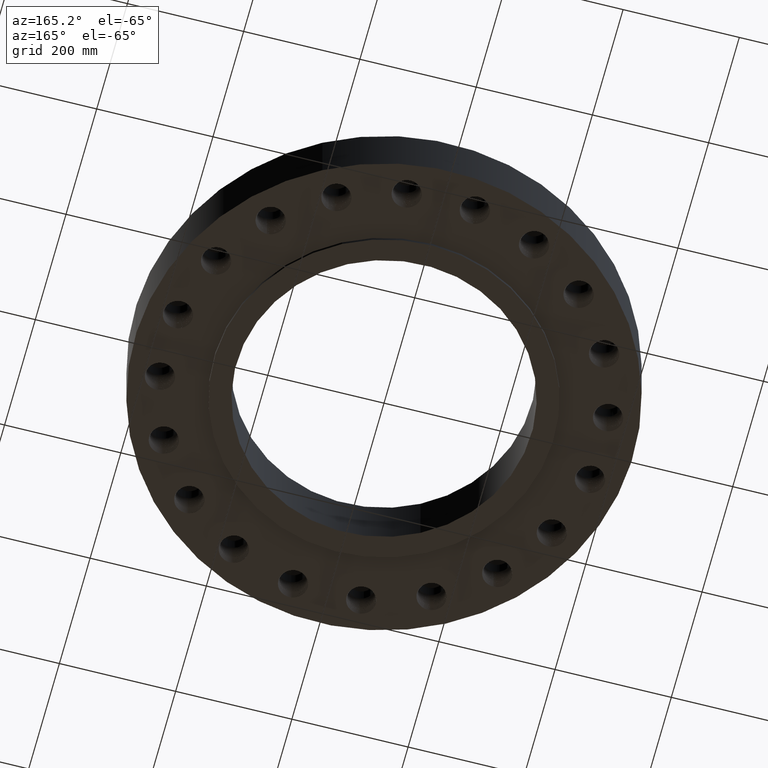
[diagram: clean part render]
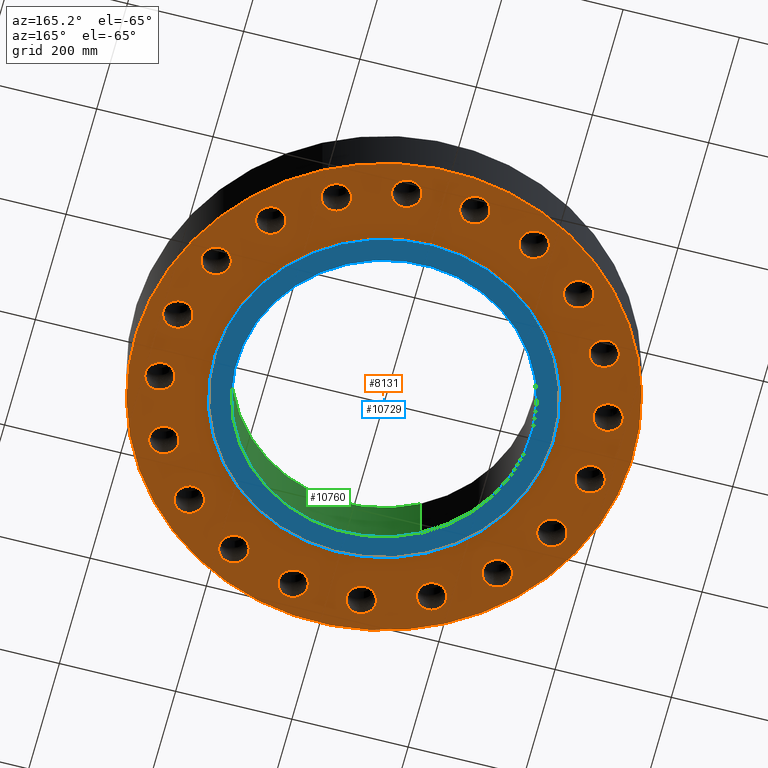
[diagram: same view with three faces highlighted in distinct colors, each labeled with its STEP entity id]
A machine part, auxiliary view with three faces highlighted in distinct colors.
Their STEP definitions:

[orange] entity #8131 — the highlighted planar face has unit normal (0, 0, -1).
#7122=AXIS2_PLACEMENT_3D('Circle Axis2P3D',#7120,#7121,$) ;
#7142=AXIS2_PLACEMENT_3D('Circle Axis2P3D',#7140,#7141,$) ;
#7162=AXIS2_PLACEMENT_3D('Circle Axis2P3D',#7160,#7161,$) ;
#7174=AXIS2_PLACEMENT_3D('Plane Axis2P3D',#7171,#7172,#7173) ;
#7178=AXIS2_PLACEMENT_3D('Circle Axis2P3D',#7176,#7177,$) ;
#7187=AXIS2_PLACEMENT_3D('Circle Axis2P3D',#7185,#7186,$) ;
#7203=AXIS2_PLACEMENT_3D('Circle Axis2P3D',#7201,#7202,$) ;
#7212=AXIS2_PLACEMENT_3D('Circle Axis2P3D',#7210,#7211,$) ;
#7221=AXIS2_PLACEMENT_3D('Circle Axis2P3D',#7219,#7220,$) ;
#7230=AXIS2_PLACEMENT_3D('Circle Axis2P3D',#7228,#7229,$) ;
#7237=AXIS2_PLACEMENT_3D('Circle Axis2P3D',#7235,#7236,$) ;
#7269=AXIS2_PLACEMENT_3D('Circle Axis2P3D',#7267,#7268,$) ;
#7278=AXIS2_PLACEMENT_3D('Circle Axis2P3D',#7276,#7277,$) ;
#7285=AXIS2_PLACEMENT_3D('Circle Axis2P3D',#7283,#7284,$) ;
#7317=AXIS2_PLACEMENT_3D('Circle Axis2P3D',#7315,#7316,$) ;
#7326=AXIS2_PLACEMENT_3D('Circle Axis2P3D',#7324,#7325,$) ;
#7333=AXIS2_PLACEMENT_3D('Circle Axis2P3D',#7331,#7332,$) ;
#7365=AXIS2_PLACEMENT_3D('Circle Axis2P3D',#7363,#7364,$) ;
#7374=AXIS2_PLACEMENT_3D('Circle Axis2P3D',#7372,#7373,$) ;
#7381=AXIS2_PLACEMENT_3D('Circle Axis2P3D',#7379,#7380,$) ;
#7413=AXIS2_PLACEMENT_3D('Circle Axis2P3D',#7411,#7412,$) ;
#7422=AXIS2_PLACEMENT_3D('Circle Axis2P3D',#7420,#7421,$) ;
#7429=AXIS2_PLACEMENT_3D('Circle Axis2P3D',#7427,#7428,$) ;
#7461=AXIS2_PLACEMENT_3D('Circle Axis2P3D',#7459,#7460,$) ;
#7470=AXIS2_PLACEMENT_3D('Circle Axis2P3D',#7468,#7469,$) ;
#7477=AXIS2_PLACEMENT_3D('Circle Axis2P3D',#7475,#7476,$) ;
#7509=AXIS2_PLACEMENT_3D('Circle Axis2P3D',#7507,#7508,$) ;
#7518=AXIS2_PLACEMENT_3D('Circle Axis2P3D',#7516,#7517,$) ;
#7525=AXIS2_PLACEMENT_3D('Circle Axis2P3D',#7523,#7524,$) ;
#7557=AXIS2_PLACEMENT_3D('Circle Axis2P3D',#7555,#7556,$) ;
#7566=AXIS2_PLACEMENT_3D('Circle Axis2P3D',#7564,#7565,$) ;
#7573=AXIS2_PLACEMENT_3D('Circle Axis2P3D',#7571,#7572,$) ;
#7605=AXIS2_PLACEMENT_3D('Circle Axis2P3D',#7603,#7604,$) ;
#7614=AXIS2_PLACEMENT_3D('Circle Axis2P3D',#7612,#7613,$) ;
#7621=AXIS2_PLACEMENT_3D('Circle Axis2P3D',#7619,#7620,$) ;
#7653=AXIS2_PLACEMENT_3D('Circle Axis2P3D',#7651,#7652,$) ;
#7662=AXIS2_PLACEMENT_3D('Circle Axis2P3D',#7660,#7661,$) ;
#7669=AXIS2_PLACEMENT_3D('Circle Axis2P3D',#7667,#7668,$) ;
#7701=AXIS2_PLACEMENT_3D('Circle Axis2P3D',#7699,#7700,$) ;
#7710=AXIS2_PLACEMENT_3D('Circle Axis2P3D',#7708,#7709,$) ;
#7717=AXIS2_PLACEMENT_3D('Circle Axis2P3D',#7715,#7716,$) ;
#7749=AXIS2_PLACEMENT_3D('Circle Axis2P3D',#7747,#7748,$) ;
#7758=AXIS2_PLACEMENT_3D('Circle Axis2P3D',#7756,#7757,$) ;
#7765=AXIS2_PLACEMENT_3D('Circle Axis2P3D',#7763,#7764,$) ;
#7797=AXIS2_PLACEMENT_3D('Circle Axis2P3D',#7795,#7796,$) ;
#7806=AXIS2_PLACEMENT_3D('Circle Axis2P3D',#7804,#7805,$) ;
#7813=AXIS2_PLACEMENT_3D('Circle Axis2P3D',#7811,#7812,$) ;
#7845=AXIS2_PLACEMENT_3D('Circle Axis2P3D',#7843,#7844,$) ;
#7854=AXIS2_PLACEMENT_3D('Circle Axis2P3D',#7852,#7853,$) ;
#7861=AXIS2_PLACEMENT_3D('Circle Axis2P3D',#7859,#7860,$) ;
#7893=AXIS2_PLACEMENT_3D('Circle Axis2P3D',#7891,#7892,$) ;
#7902=AXIS2_PLACEMENT_3D('Circle Axis2P3D',#7900,#7901,$) ;
#7909=AXIS2_PLACEMENT_3D('Circle Axis2P3D',#7907,#7908,$) ;
#7941=AXIS2_PLACEMENT_3D('Circle Axis2P3D',#7939,#7940,$) ;
#7950=AXIS2_PLACEMENT_3D('Circle Axis2P3D',#7948,#7949,$) ;
#7957=AXIS2_PLACEMENT_3D('Circle Axis2P3D',#7955,#7956,$) ;
#7989=AXIS2_PLACEMENT_3D('Circle Axis2P3D',#7987,#7988,$) ;
#7998=AXIS2_PLACEMENT_3D('Circle Axis2P3D',#7996,#7997,$) ;
#8005=AXIS2_PLACEMENT_3D('Circle Axis2P3D',#8003,#8004,$) ;
#8037=AXIS2_PLACEMENT_3D('Circle Axis2P3D',#8035,#8036,$) ;
#8046=AXIS2_PLACEMENT_3D('Circle Axis2P3D',#8044,#8045,$) ;
#8053=AXIS2_PLACEMENT_3D('Circle Axis2P3D',#8051,#8052,$) ;
#8085=AXIS2_PLACEMENT_3D('Circle Axis2P3D',#8083,#8084,$) ;
#8094=AXIS2_PLACEMENT_3D('Circle Axis2P3D',#8092,#8093,$) ;
#8101=AXIS2_PLACEMENT_3D('Circle Axis2P3D',#8099,#8100,$) ;
#6860=CARTESIAN_POINT('Vertex',(10.4298250225,9.42982502254,-3.58724423744E-014)) ;
#7058=CARTESIAN_POINT('Vertex',(10.552781248,9.43993209064,0.)) ;
#7062=CARTESIAN_POINT('Control Point',(10.4298250225,9.42982502254,-3.5809063501E-014)) ;
#7063=CARTESIAN_POINT('Control Point',(10.4709937157,9.43065832093,-3.5808765136E-014)) ;
#7064=CARTESIAN_POINT('Control Point',(10.5120854332,9.43403766771,-4.09043965677E-012)) ;
#7065=CARTESIAN_POINT('Control Point',(10.5527812089,9.4399319843,-4.01466480357E-012)) ;
#7095=CARTESIAN_POINT('Control Point',(10.4298250225,9.42982502254,2.18547839493E-018)) ;
#7096=CARTESIAN_POINT('Control Point',(10.3886793634,9.43065785469,2.38427707412E-018)) ;
#7097=CARTESIAN_POINT('Control Point',(10.3476103474,9.4340339357,-1.74705122703E-011)) ;
#7098=CARTESIAN_POINT('Control Point',(10.3069330116,9.43992392813,-5.01002585874E-011)) ;
#7099=CARTESIAN_POINT('Vertex',(10.306932999,9.43992411813,0.)) ;
#7120=CARTESIAN_POINT('Axis2P3D Location',(10.4298250225,10.4298250225,0.)) ;
#7124=CARTESIAN_POINT('Vertex',(9.55443641705,9.95159804778,8.74191357973E-018)) ;
#7140=CARTESIAN_POINT('Axis2P3D Location',(10.4298250225,10.4298250225,0.)) ;
#7144=CARTESIAN_POINT('Vertex',(11.305213628,10.9080519973,8.74191357973E-018)) ;
#7160=CARTESIAN_POINT('Axis2P3D Location',(10.4298250225,10.4298250225,0.)) ;
#7171=CARTESIAN_POINT('Axis2P3D Location',(0.,16.8750000001,0.)) ;
#7176=CARTESIAN_POINT('Axis2P3D Location',(0.,0.,0.)) ;
#7180=CARTESIAN_POINT('Vertex',(-8.09030596398,-14.809205732,-4.97939397501E-014)) ;
#7182=CARTESIAN_POINT('Vertex',(8.09030596398,14.809205732,-4.97939397501E-014)) ;
#7185=CARTESIAN_POINT('Axis2P3D Location',(0.,0.,0.)) ;
#7201=CARTESIAN_POINT('Axis2P3D Location',(0.,0.,0.)) ;
#7205=CARTESIAN_POINT('Vertex',(5.51339369397,10.0921994618,-3.44081718498E-014)) ;
#7207=CARTESIAN_POINT('Vertex',(-5.51339369397,-10.0921994618,-3.44081718498E-014)) ;
#7210=CARTESIAN_POINT('Axis2P3D Location',(0.,0.,0.)) ;
#7219=CARTESIAN_POINT('Axis2P3D Location',(13.1423462318,6.69635987119,0.)) ;
#7223=CARTESIAN_POINT('Vertex',(14.1226705317,6.88067079602,0.)) ;
#7225=CARTESIAN_POINT('Vertex',(12.9533908126,5.71692018465,0.)) ;
#7228=CARTESIAN_POINT('Axis2P3D Location',(13.1423462318,6.69635987119,0.)) ;
#7232=CARTESIAN_POINT('Vertex',(12.1620219319,6.51204894635,8.91675185132E-016)) ;
#7235=CARTESIAN_POINT('Axis2P3D Location',(13.1423462318,6.69635987119,0.)) ;
#7239=CARTESIAN_POINT('Vertex',(12.7195727698,5.7928838893,0.)) ;
#7243=CARTESIAN_POINT('Control Point',(12.8333292375,5.74530335489,0.)) ;
#7244=CARTESIAN_POINT('Control Point',(12.8100045447,5.7534074219,0.)) ;
#7245=CARTESIAN_POINT('Control Point',(12.7869370857,5.76222911801,0.)) ;
#7246=CARTESIAN_POINT('Control Point',(12.764156717,5.77175776833,0.)) ;
#7247=CARTESIAN_POINT('Control Point',(12.7416925533,5.7819807982,0.)) ;
#7248=CARTESIAN_POINT('Control Point',(12.7195727698,5.7928838893,0.)) ;
#7249=CARTESIAN_POINT('Vertex',(12.8333292375,5.74530335489,-3.58724423744E-014)) ;
#7253=CARTESIAN_POINT('Control Point',(12.8333292375,5.74530335489,0.)) ;
#7254=CARTESIAN_POINT('Control Point',(12.8569759918,5.73814576771,0.)) ;
#7255=CARTESIAN_POINT('Control Point',(12.8808366903,5.73172077089,0.)) ;
#7256=CARTESIAN_POINT('Control Point',(12.9048803249,5.72603723864,0.)) ;
#7257=CARTESIAN_POINT('Control Point',(12.9290755349,5.72110207042,0.)) ;
#7258=CARTESIAN_POINT('Control Point',(12.9533908126,5.71692018465,0.)) ;
#7267=CARTESIAN_POINT('Axis2P3D Location',(14.5684030238,2.30740835935,0.)) ;
#7271=CARTESIAN_POINT('Vertex',(15.5577020454,2.17976159677,0.)) ;
#7273=CARTESIAN_POINT('Vertex',(14.086032233,1.43429629885,0.)) ;
#7276=CARTESIAN_POINT('Axis2P3D Location',(14.5684030238,2.30740835935,0.)) ;
#7280=CARTESIAN_POINT('Vertex',(13.5791040023,2.43505512193,1.74838271595E-016)) ;
#7283=CARTESIAN_POINT('Axis2P3D Location',(14.5684030238,2.30740835935,0.)) ;
#7287=CARTESIAN_POINT('Vertex',(13.8871321355,1.57879582401,0.)) ;
#7291=CARTESIAN_POINT('Control Point',(13.9806177715,1.49839136497,0.)) ;
#7292=CARTESIAN_POINT('Control Point',(13.9609389649,1.51330651717,0.)) ;
#7293=CARTESIAN_POINT('Control Point',(13.9417265618,1.52882468559,0.)) ;
#7294=CARTESIAN_POINT('Control Point',(13.9230056585,1.54492649164,0.)) ;
#7295=CARTESIAN_POINT('Control Point',(13.9048000592,1.56159097918,0.)) ;
#7296=CARTESIAN_POINT('Control Point',(13.8871321355,1.57879582401,0.)) ;
#7297=CARTESIAN_POINT('Vertex',(13.9806177715,1.49839136497,-3.58724423744E-014)) ;
#7301=CARTESIAN_POINT('Control Point',(13.9806177715,1.49839136497,0.)) ;
#7302=CARTESIAN_POINT('Control Point',(14.0008953553,1.48427684608,0.)) ;
#7303=CARTESIAN_POINT('Control Point',(14.0216027949,1.47079294966,0.)) ;
#7304=CARTESIAN_POINT('Control Point',(14.0427133422,1.45795769759,0.)) ;
#7305=CARTESIAN_POINT('Control Point',(14.0641993035,1.44578734261,0.)) ;
#7306=CARTESIAN_POINT('Control Point',(14.086032233,1.43429629885,0.)) ;
#7315=CARTESIAN_POINT('Axis2P3D Location',(14.5684030238,-2.30740835935,0.)) ;
#7319=CARTESIAN_POINT('Vertex',(15.4698372859,-2.73451785486,0.)) ;
#7321=CARTESIAN_POINT('Vertex',(13.8398346753,-2.988726502,0.)) ;
#7324=CARTESIAN_POINT('Axis2P3D Location',(14.5684030238,-2.30740835935,0.)) ;
#7328=CARTESIAN_POINT('Vertex',(13.6669687618,-1.88029886384,8.74191357973E-018)) ;
#7331=CARTESIAN_POINT('Axis2P3D Location',(14.5684030238,-2.30740835935,0.)) ;
#7335=CARTESIAN_POINT('Vertex',(13.6953222503,-2.78983577666,0.)) ;
#7339=CARTESIAN_POINT('Control Point',(13.7593860295,-2.89519361165,0.)) ;
#7340=CARTESIAN_POINT('Control Point',(13.7452794077,-2.87492737329,0.)) ;
#7341=CARTESIAN_POINT('Control Point',(13.7318027042,-2.854231759,0.)) ;
#7342=CARTESIAN_POINT('Control Point',(13.7189737989,-2.83313295418,0.)) ;
#7343=CARTESIAN_POINT('Control Point',(13.7068088549,-2.81165824514,0.)) ;
#7344=CARTESIAN_POINT('Control Point',(13.6953222503,-2.78983577666,0.)) ;
#7345=CARTESIAN_POINT('Vertex',(13.7593860295,-2.89519361165,-3.58724423744E-014)) ;
#7349=CARTESIAN_POINT('Control Point',(13.7593860295,-2.89519361165,0.)) ;
#7350=CARTESIAN_POINT('Control Point',(13.7743095314,-2.9148834348,0.)) ;
#7351=CARTESIAN_POINT('Control Point',(13.7898367236,-2.9341063331,0.)) ;
#7352=CARTESIAN_POINT('Control Point',(13.8059477362,-2.95283690109,0.)) ;
#7353=CARTESIAN_POINT('Control Point',(13.8226212532,-2.97105112368,0.)) ;
#7354=CARTESIAN_POINT('Control Point',(13.8398346753,-2.988726502,0.)) ;
#7363=CARTESIAN_POINT('Axis2P3D Location',(13.1423462318,-6.69635987119,0.)) ;
#7367=CARTESIAN_POINT('Vertex',(13.8676770682,-7.38112364636,0.)) ;
#7369=CARTESIAN_POINT('Vertex',(12.2388976717,-7.11919192915,0.)) ;
#7372=CARTESIAN_POINT('Axis2P3D Location',(13.1423462318,-6.69635987119,0.)) ;
#7376=CARTESIAN_POINT('Vertex',(12.4170153954,-6.01159609601,-8.74191357973E-018)) ;
#7379=CARTESIAN_POINT('Axis2P3D Location',(13.1423462318,-6.69635987119,0.)) ;
#7383=CARTESIAN_POINT('Vertex',(12.1629188025,-6.88537881364,0.)) ;
#7387=CARTESIAN_POINT('Control Point',(12.1912897155,-7.00537686556,0.)) ;
#7388=CARTESIAN_POINT('Control Point',(12.1841361331,-6.98174334167,0.)) ;
#7389=CARTESIAN_POINT('Control Point',(12.1777143229,-6.95789611245,0.)) ;
#7390=CARTESIAN_POINT('Control Point',(12.1720331982,-6.9338656069,0.)) ;
#7391=CARTESIAN_POINT('Control Point',(12.167099699,-6.90968277049,0.)) ;
#7392=CARTESIAN_POINT('Control Point',(12.1629188025,-6.88537881364,0.)) ;
#7393=CARTESIAN_POINT('Vertex',(12.1912897155,-7.00537686556,-3.58724423744E-014)) ;
#7397=CARTESIAN_POINT('Control Point',(12.1912897155,-7.00537686556,0.)) ;
#7398=CARTESIAN_POINT('Control Point',(12.1993983193,-7.02871461589,0.)) ;
#7399=CARTESIAN_POINT('Control Point',(12.2082253544,-7.05179484485,0.)) ;
#7400=CARTESIAN_POINT('Control Point',(12.2177597741,-7.07458725026,0.)) ;
#7401=CARTESIAN_POINT('Control Point',(12.2279887267,-7.09706240545,0.)) ;
#7402=CARTESIAN_POINT('Control Point',(12.2388976717,-7.11919192915,0.)) ;
#7411=CARTESIAN_POINT('Axis2P3D Location',(10.4298250225,-10.4298250225,0.)) ;
#7415=CARTESIAN_POINT('Vertex',(10.9080519973,-11.305213628,0.)) ;
#7417=CARTESIAN_POINT('Vertex',(9.43993209064,-10.552781248,0.)) ;
#7420=CARTESIAN_POINT('Axis2P3D Location',(10.4298250225,-10.4298250225,0.)) ;
#7424=CARTESIAN_POINT('Vertex',(9.95159804778,-9.55443641705,8.74191357973E-018)) ;
#7427=CARTESIAN_POINT('Axis2P3D Location',(10.4298250225,-10.4298250225,0.)) ;
#7431=CARTESIAN_POINT('Vertex',(9.43992411813,-10.306932999,0.)) ;
#7435=CARTESIAN_POINT('Control Point',(9.42982502254,-10.4298250225,0.)) ;
#7436=CARTESIAN_POINT('Control Point',(9.43032472183,-10.4051376271,0.)) ;
#7437=CARTESIAN_POINT('Control Point',(9.43158641656,-10.3804731158,0.)) ;
#7438=CARTESIAN_POINT('Control Point',(9.43360918047,-10.3558631829,0.)) ;
#7439=CARTESIAN_POINT('Control Point',(9.43639005129,-10.3313394036,0.)) ;
#7440=CARTESIAN_POINT('Control Point',(9.43992411813,-10.306932999,0.)) ;
#7441=CARTESIAN_POINT('Vertex',(9.42982502254,-10.4298250225,-3.58724423744E-014)) ;
#7445=CARTESIAN_POINT('Control Point',(9.42982502254,-10.4298250225,0.)) ;
#7446=CARTESIAN_POINT('Control Point',(9.43032500157,-10.4545262385,0.)) ;
#7447=CARTESIAN_POINT('Control Point',(9.43158782782,-10.4792045445,0.)) ;
#7448=CARTESIAN_POINT('Control Point',(9.43361235912,-10.5038277078,0.)) ;
#7449=CARTESIAN_POINT('Control Point',(9.43639546631,-10.5283637709,0.)) ;
#7450=CARTESIAN_POINT('Control Point',(9.43993209064,-10.552781248,0.)) ;
#7459=CARTESIAN_POINT('Axis2P3D Location',(6.69635987119,-13.1423462318,0.)) ;
#7463=CARTESIAN_POINT('Vertex',(6.88067079602,-14.1226705317,0.)) ;
#7465=CARTESIAN_POINT('Vertex',(5.71692018464,-12.9533908127,0.)) ;
#7468=CARTESIAN_POINT('Axis2P3D Location',(6.69635987119,-13.1423462318,0.)) ;
#7472=CARTESIAN_POINT('Vertex',(6.51204894635,-12.1620219319,-1.04902962957E-016)) ;
#7475=CARTESIAN_POINT('Axis2P3D Location',(6.69635987119,-13.1423462318,0.)) ;
#7479=CARTESIAN_POINT('Vertex',(5.79288388933,-12.7195727698,0.)) ;
#7483=CARTESIAN_POINT('Control Point',(5.74530335489,-12.8333292375,0.)) ;
#7484=CARTESIAN_POINT('Control Point',(5.7534074219,-12.8100045447,0.)) ;
#7485=CARTESIAN_POINT('Control Point',(5.76222911802,-12.7869370857,0.)) ;
#7486=CARTESIAN_POINT('Control Point',(5.77175776835,-12.764156717,0.)) ;
#7487=CARTESIAN_POINT('Control Point',(5.78198079822,-12.7416925532,0.)) ;
#7488=CARTESIAN_POINT('Control Point',(5.79288388933,-12.7195727698,0.)) ;
#7489=CARTESIAN_POINT('Vertex',(5.74530335489,-12.8333292375,-3.58724423744E-014)) ;
#7493=CARTESIAN_POINT('Control Point',(5.74530335489,-12.8333292375,0.)) ;
#7494=CARTESIAN_POINT('Control Point',(5.73814576771,-12.8569759918,0.)) ;
#7495=CARTESIAN_POINT('Control Point',(5.73172077089,-12.8808366903,0.)) ;
#7496=CARTESIAN_POINT('Control Point',(5.72603723864,-12.9048803249,0.)) ;
#7497=CARTESIAN_POINT('Control Point',(5.72110207042,-12.9290755349,0.)) ;
#7498=CARTESIAN_POINT('Control Point',(5.71692018464,-12.9533908127,0.)) ;
#7507=CARTESIAN_POINT('Axis2P3D Location',(2.30740835935,-14.5684030238,0.)) ;
#7511=CARTESIAN_POINT('Vertex',(2.17976159677,-15.5577020454,0.)) ;
#7513=CARTESIAN_POINT('Vertex',(1.43429629885,-14.086032233,0.)) ;
#7516=CARTESIAN_POINT('Axis2P3D Location',(2.30740835935,-14.5684030238,0.)) ;
#7520=CARTESIAN_POINT('Vertex',(2.43505512193,-13.5791040023,0.)) ;
#7523=CARTESIAN_POINT('Axis2P3D Location',(2.30740835935,-14.5684030238,0.)) ;
#7527=CARTESIAN_POINT('Vertex',(1.57879582401,-13.8871321355,0.)) ;
#7531=CARTESIAN_POINT('Control Point',(1.49839136497,-13.9806177715,0.)) ;
#7532=CARTESIAN_POINT('Control Point',(1.51330651717,-13.9609389649,0.)) ;
#7533=CARTESIAN_POINT('Control Point',(1.52882468559,-13.9417265618,0.)) ;
#7534=CARTESIAN_POINT('Control Point',(1.54492649165,-13.9230056585,0.)) ;
#7535=CARTESIAN_POINT('Control Point',(1.56159097918,-13.9048000592,0.)) ;
#7536=CARTESIAN_POINT('Control Point',(1.57879582401,-13.8871321355,0.)) ;
#7537=CARTESIAN_POINT('Vertex',(1.49839136497,-13.9806177715,-3.58724423744E-014)) ;
#7541=CARTESIAN_POINT('Control Point',(1.49839136497,-13.9806177715,0.)) ;
#7542=CARTESIAN_POINT('Control Point',(1.48427684608,-14.0008953553,0.)) ;
#7543=CARTESIAN_POINT('Control Point',(1.47079294966,-14.0216027949,0.)) ;
#7544=CARTESIAN_POINT('Control Point',(1.45795769759,-14.0427133422,0.)) ;
#7545=CARTESIAN_POINT('Control Point',(1.44578734261,-14.0641993035,0.)) ;
#7546=CARTESIAN_POINT('Control Point',(1.43429629885,-14.086032233,0.)) ;
#7555=CARTESIAN_POINT('Axis2P3D Location',(-2.30740835935,-14.5684030238,0.)) ;
#7559=CARTESIAN_POINT('Vertex',(-2.73451785486,-15.4698372859,0.)) ;
#7561=CARTESIAN_POINT('Vertex',(-2.988726502,-13.8398346753,0.)) ;
#7564=CARTESIAN_POINT('Axis2P3D Location',(-2.30740835935,-14.5684030238,0.)) ;
#7568=CARTESIAN_POINT('Vertex',(-1.88029886384,-13.6669687618,0.)) ;
#7571=CARTESIAN_POINT('Axis2P3D Location',(-2.30740835935,-14.5684030238,0.)) ;
#7575=CARTESIAN_POINT('Vertex',(-2.78983577662,-13.6953222503,0.)) ;
#7579=CARTESIAN_POINT('Control Point',(-2.89519361165,-13.7593860295,0.)) ;
#7580=CARTESIAN_POINT('Control Point',(-2.87492737328,-13.7452794077,0.)) ;
#7581=CARTESIAN_POINT('Control Point',(-2.85423175899,-13.7318027042,0.)) ;
#7582=CARTESIAN_POINT('Control Point',(-2.83313295416,-13.7189737989,0.)) ;
#7583=CARTESIAN_POINT('Control Point',(-2.81165824511,-13.7068088549,0.)) ;
#7584=CARTESIAN_POINT('Control Point',(-2.78983577662,-13.6953222503,0.)) ;
#7585=CARTESIAN_POINT('Vertex',(-2.89519361165,-13.7593860295,-3.58724423744E-014)) ;
#7589=CARTESIAN_POINT('Control Point',(-2.89519361165,-13.7593860295,0.)) ;
#7590=CARTESIAN_POINT('Control Point',(-2.9148834348,-13.7743095314,0.)) ;
#7591=CARTESIAN_POINT('Control Point',(-2.9341063331,-13.7898367236,0.)) ;
#7592=CARTESIAN_POINT('Control Point',(-2.95283690108,-13.8059477362,0.)) ;
#7593=CARTESIAN_POINT('Control Point',(-2.97105112368,-13.8226212532,0.)) ;
#7594=CARTESIAN_POINT('Control Point',(-2.988726502,-13.8398346753,0.)) ;
#7603=CARTESIAN_POINT('Axis2P3D Location',(-6.69635987119,-13.1423462318,0.)) ;
#7607=CARTESIAN_POINT('Vertex',(-7.38112364636,-13.8676770682,0.)) ;
#7609=CARTESIAN_POINT('Vertex',(-7.11919192915,-12.2388976717,0.)) ;
#7612=CARTESIAN_POINT('Axis2P3D Location',(-6.69635987119,-13.1423462318,0.)) ;
#7616=CARTESIAN_POINT('Vertex',(-6.01159609601,-12.4170153954,0.)) ;
#7619=CARTESIAN_POINT('Axis2P3D Location',(-6.69635987119,-13.1423462318,0.)) ;
#7623=CARTESIAN_POINT('Vertex',(-6.88537881359,-12.1629188025,0.)) ;
#7627=CARTESIAN_POINT('Control Point',(-7.00537686556,-12.1912897155,0.)) ;
#7628=CARTESIAN_POINT('Control Point',(-6.98174334166,-12.1841361331,0.)) ;
#7629=CARTESIAN_POINT('Control Point',(-6.95789611243,-12.1777143229,0.)) ;
#7630=CARTESIAN_POINT('Control Point',(-6.93386560687,-12.1720331982,0.)) ;
#7631=CARTESIAN_POINT('Control Point',(-6.90968277045,-12.1670996989,0.)) ;
#7632=CARTESIAN_POINT('Control Point',(-6.88537881359,-12.1629188025,0.)) ;
#7633=CARTESIAN_POINT('Vertex',(-7.00537686556,-12.1912897155,-3.58724423744E-014)) ;
#7637=CARTESIAN_POINT('Control Point',(-7.00537686556,-12.1912897155,0.)) ;
#7638=CARTESIAN_POINT('Control Point',(-7.02871461589,-12.1993983193,0.)) ;
#7639=CARTESIAN_POINT('Control Point',(-7.05179484485,-12.2082253544,0.)) ;
#7640=CARTESIAN_POINT('Control Point',(-7.07458725026,-12.2177597741,0.)) ;
#7641=CARTESIAN_POINT('Control Point',(-7.09706240545,-12.2279887267,0.)) ;
#7642=CARTESIAN_POINT('Control Point',(-7.11919192915,-12.2388976717,0.)) ;
#7651=CARTESIAN_POINT('Axis2P3D Location',(-10.4298250225,-10.4298250225,0.)) ;
#7655=CARTESIAN_POINT('Vertex',(-11.305213628,-10.9080519973,0.)) ;
#7657=CARTESIAN_POINT('Vertex',(-10.552781248,-9.43993209064,0.)) ;
#7660=CARTESIAN_POINT('Axis2P3D Location',(-10.4298250225,-10.4298250225,0.)) ;
#7664=CARTESIAN_POINT('Vertex',(-9.55443641705,-9.95159804778,8.74191357973E-018)) ;
#7667=CARTESIAN_POINT('Axis2P3D Location',(-10.4298250225,-10.4298250225,0.)) ;
#7671=CARTESIAN_POINT('Vertex',(-10.306932999,-9.43992411814,0.)) ;
#7675=CARTESIAN_POINT('Control Point',(-10.4298250225,-9.42982502254,0.)) ;
#7676=CARTESIAN_POINT('Control Point',(-10.4051376271,-9.43032472183,0.)) ;
#7677=CARTESIAN_POINT('Control Point',(-10.3804731158,-9.43158641656,0.)) ;
#7678=CARTESIAN_POINT('Control Point',(-10.3558631828,-9.43360918047,0.)) ;
#7679=CARTESIAN_POINT('Control Point',(-10.3313394036,-9.43639005129,0.)) ;
#7680=CARTESIAN_POINT('Control Point',(-10.306932999,-9.43992411814,0.)) ;
#7681=CARTESIAN_POINT('Vertex',(-10.4298250225,-9.42982502254,-3.58724423744E-014)) ;
#7685=CARTESIAN_POINT('Control Point',(-10.4298250225,-9.42982502254,0.)) ;
#7686=CARTESIAN_POINT('Control Point',(-10.4545262385,-9.43032500157,0.)) ;
#7687=CARTESIAN_POINT('Control Point',(-10.4792045445,-9.43158782782,0.)) ;
#7688=CARTESIAN_POINT('Control Point',(-10.5038277079,-9.43361235912,0.)) ;
#7689=CARTESIAN_POINT('Control Point',(-10.5283637709,-9.43639546631,0.)) ;
#7690=CARTESIAN_POINT('Control Point',(-10.552781248,-9.43993209064,0.)) ;
#7699=CARTESIAN_POINT('Axis2P3D Location',(-13.1423462318,-6.69635987119,0.)) ;
#7703=CARTESIAN_POINT('Vertex',(-14.1226705317,-6.88067079602,0.)) ;
#7705=CARTESIAN_POINT('Vertex',(-12.9533908126,-5.71692018465,0.)) ;
#7708=CARTESIAN_POINT('Axis2P3D Location',(-13.1423462318,-6.69635987119,0.)) ;
#7712=CARTESIAN_POINT('Vertex',(-12.1620219319,-6.51204894635,0.)) ;
#7715=CARTESIAN_POINT('Axis2P3D Location',(-13.1423462318,-6.69635987119,0.)) ;
#7719=CARTESIAN_POINT('Vertex',(-12.7195727699,-5.79288388929,0.)) ;
#7723=CARTESIAN_POINT('Control Point',(-12.8333292375,-5.74530335489,0.)) ;
#7724=CARTESIAN_POINT('Control Point',(-12.8100045447,-5.7534074219,0.)) ;
#7725=CARTESIAN_POINT('Control Point',(-12.7869370857,-5.76222911801,0.)) ;
#7726=CARTESIAN_POINT('Control Point',(-12.764156717,-5.77175776833,0.)) ;
#7727=CARTESIAN_POINT('Control Point',(-12.7416925533,-5.7819807982,0.)) ;
#7728=CARTESIAN_POINT('Control Point',(-12.7195727699,-5.79288388929,0.)) ;
#7729=CARTESIAN_POINT('Vertex',(-12.8333292375,-5.74530335489,-3.58724423744E-014)) ;
#7733=CARTESIAN_POINT('Control Point',(-12.8333292375,-5.74530335489,0.)) ;
#7734=CARTESIAN_POINT('Control Point',(-12.8569759918,-5.73814576771,0.)) ;
#7735=CARTESIAN_POINT('Control Point',(-12.8808366903,-5.73172077089,0.)) ;
#7736=CARTESIAN_POINT('Control Point',(-12.9048803249,-5.72603723865,0.)) ;
#7737=CARTESIAN_POINT('Control Point',(-12.9290755349,-5.72110207042,0.)) ;
#7738=CARTESIAN_POINT('Control Point',(-12.9533908126,-5.71692018465,0.)) ;
#7747=CARTESIAN_POINT('Axis2P3D Location',(-14.5684030238,-2.30740835935,0.)) ;
#7751=CARTESIAN_POINT('Vertex',(-15.5577020454,-2.17976159677,0.)) ;
#7753=CARTESIAN_POINT('Vertex',(-14.086032233,-1.43429629886,0.)) ;
#7756=CARTESIAN_POINT('Axis2P3D Location',(-14.5684030238,-2.30740835935,0.)) ;
#7760=CARTESIAN_POINT('Vertex',(-13.5791040023,-2.43505512194,6.3815969132E-016)) ;
#7763=CARTESIAN_POINT('Axis2P3D Location',(-14.5684030238,-2.30740835935,0.)) ;
#7767=CARTESIAN_POINT('Vertex',(-13.8871321355,-1.57879582399,0.)) ;
#7771=CARTESIAN_POINT('Control Point',(-13.9806177715,-1.49839136497,0.)) ;
#7772=CARTESIAN_POINT('Control Point',(-13.9609389649,-1.51330651716,0.)) ;
#7773=CARTESIAN_POINT('Control Point',(-13.9417265618,-1.52882468558,0.)) ;
#7774=CARTESIAN_POINT('Control Point',(-13.9230056585,-1.54492649164,0.)) ;
#7775=CARTESIAN_POINT('Control Point',(-13.9048000592,-1.56159097917,0.)) ;
#7776=CARTESIAN_POINT('Control Point',(-13.8871321355,-1.57879582399,0.)) ;
#7777=CARTESIAN_POINT('Vertex',(-13.9806177715,-1.49839136497,-3.58724423744E-014)) ;
#7781=CARTESIAN_POINT('Control Point',(-13.9806177715,-1.49839136497,0.)) ;
#7782=CARTESIAN_POINT('Control Point',(-14.0008953553,-1.48427684609,0.)) ;
#7783=CARTESIAN_POINT('Control Point',(-14.0216027949,-1.47079294967,0.)) ;
#7784=CARTESIAN_POINT('Control Point',(-14.0427133421,-1.4579576976,0.)) ;
#7785=CARTESIAN_POINT('Control Point',(-14.0641993035,-1.44578734262,0.)) ;
#7786=CARTESIAN_POINT('Control Point',(-14.086032233,-1.43429629886,0.)) ;
#7795=CARTESIAN_POINT('Axis2P3D Location',(-14.5684030238,2.30740835935,0.)) ;
#7799=CARTESIAN_POINT('Vertex',(-15.4698372859,2.73451785486,0.)) ;
#7801=CARTESIAN_POINT('Vertex',(-13.8398346753,2.98872650202,0.)) ;
#7804=CARTESIAN_POINT('Axis2P3D Location',(-14.5684030238,2.30740835935,0.)) ;
#7808=CARTESIAN_POINT('Vertex',(-13.6669687618,1.88029886384,2.44773580232E-016)) ;
#7811=CARTESIAN_POINT('Axis2P3D Location',(-14.5684030238,2.30740835935,0.)) ;
#7815=CARTESIAN_POINT('Vertex',(-13.6953222503,2.78983577665,0.)) ;
#7819=CARTESIAN_POINT('Control Point',(-13.7593860295,2.89519361165,0.)) ;
#7820=CARTESIAN_POINT('Control Point',(-13.7452794077,2.87492737329,0.)) ;
#7821=CARTESIAN_POINT('Control Point',(-13.7318027042,2.854231759,0.)) ;
#7822=CARTESIAN_POINT('Control Point',(-13.7189737989,2.83313295418,0.)) ;
#7823=CARTESIAN_POINT('Control Point',(-13.7068088549,2.81165824513,0.)) ;
#7824=CARTESIAN_POINT('Control Point',(-13.6953222503,2.78983577665,0.)) ;
#7825=CARTESIAN_POINT('Vertex',(-13.7593860295,2.89519361165,-3.58724423744E-014)) ;
#7829=CARTESIAN_POINT('Control Point',(-13.7593860295,2.89519361165,0.)) ;
#7830=CARTESIAN_POINT('Control Point',(-13.7743095314,2.9148834348,0.)) ;
#7831=CARTESIAN_POINT('Control Point',(-13.7898367236,2.93410633311,0.)) ;
#7832=CARTESIAN_POINT('Control Point',(-13.8059477362,2.9528369011,0.)) ;
#7833=CARTESIAN_POINT('Control Point',(-13.8226212532,2.9710511237,0.)) ;
#7834=CARTESIAN_POINT('Control Point',(-13.8398346753,2.98872650202,0.)) ;
#7843=CARTESIAN_POINT('Axis2P3D Location',(-13.1423462318,6.69635987119,0.)) ;
#7847=CARTESIAN_POINT('Vertex',(-13.8676770682,7.38112364636,0.)) ;
#7849=CARTESIAN_POINT('Vertex',(-12.2388976717,7.11919192916,0.)) ;
#7852=CARTESIAN_POINT('Axis2P3D Location',(-13.1423462318,6.69635987119,0.)) ;
#7856=CARTESIAN_POINT('Vertex',(-12.4170153954,6.01159609601,-8.74191357973E-018)) ;
#7859=CARTESIAN_POINT('Axis2P3D Location',(-13.1423462318,6.69635987119,0.)) ;
#7863=CARTESIAN_POINT('Vertex',(-12.1629188025,6.88537881359,0.)) ;
#7867=CARTESIAN_POINT('Control Point',(-12.1912897155,7.00537686556,0.)) ;
#7868=CARTESIAN_POINT('Control Point',(-12.1841361331,6.98174334166,0.)) ;
#7869=CARTESIAN_POINT('Control Point',(-12.1777143229,6.95789611243,0.)) ;
#7870=CARTESIAN_POINT('Control Point',(-12.1720331982,6.93386560687,0.)) ;
#7871=CARTESIAN_POINT('Control Point',(-12.1670996989,6.90968277045,0.)) ;
#7872=CARTESIAN_POINT('Control Point',(-12.1629188025,6.88537881359,0.)) ;
#7873=CARTESIAN_POINT('Vertex',(-12.1912897155,7.00537686556,-3.58724423744E-014)) ;
#7877=CARTESIAN_POINT('Control Point',(-12.1912897155,7.00537686556,0.)) ;
#7878=CARTESIAN_POINT('Control Point',(-12.1993983193,7.02871461589,0.)) ;
#7879=CARTESIAN_POINT('Control Point',(-12.2082253544,7.05179484485,0.)) ;
#7880=CARTESIAN_POINT('Control Point',(-12.2177597741,7.07458725026,0.)) ;
#7881=CARTESIAN_POINT('Control Point',(-12.2279887267,7.09706240546,0.)) ;
#7882=CARTESIAN_POINT('Control Point',(-12.2388976717,7.11919192916,0.)) ;
#7891=CARTESIAN_POINT('Axis2P3D Location',(-10.4298250225,10.4298250225,0.)) ;
#7895=CARTESIAN_POINT('Vertex',(-10.9080519973,11.305213628,0.)) ;
#7897=CARTESIAN_POINT('Vertex',(-9.43993209064,10.552781248,0.)) ;
#7900=CARTESIAN_POINT('Axis2P3D Location',(-10.4298250225,10.4298250225,0.)) ;
#7904=CARTESIAN_POINT('Vertex',(-9.95159804778,9.55443641705,-5.24514814784E-016)) ;
#7907=CARTESIAN_POINT('Axis2P3D Location',(-10.4298250225,10.4298250225,0.)) ;
#7911=CARTESIAN_POINT('Vertex',(-9.43992411814,10.306932999,0.)) ;
#7915=CARTESIAN_POINT('Control Point',(-9.42982502254,10.4298250225,0.)) ;
#7916=CARTESIAN_POINT('Control Point',(-9.43032472183,10.4051376271,0.)) ;
#7917=CARTESIAN_POINT('Control Point',(-9.43158641656,10.3804731158,0.)) ;
#7918=CARTESIAN_POINT('Control Point',(-9.43360918047,10.3558631829,0.)) ;
#7919=CARTESIAN_POINT('Control Point',(-9.43639005129,10.3313394036,0.)) ;
#7920=CARTESIAN_POINT('Control Point',(-9.43992411814,10.306932999,0.)) ;
#7921=CARTESIAN_POINT('Vertex',(-9.42982502254,10.4298250225,-3.58724423744E-014)) ;
#7925=CARTESIAN_POINT('Control Point',(-9.42982502254,10.4298250225,0.)) ;
#7926=CARTESIAN_POINT('Control Point',(-9.43032500157,10.4545262385,0.)) ;
#7927=CARTESIAN_POINT('Control Point',(-9.43158782782,10.4792045445,0.)) ;
#7928=CARTESIAN_POINT('Control Point',(-9.43361235912,10.5038277078,0.)) ;
#7929=CARTESIAN_POINT('Control Point',(-9.43639546631,10.5283637709,0.)) ;
#7930=CARTESIAN_POINT('Control Point',(-9.43993209064,10.552781248,0.)) ;
#7939=CARTESIAN_POINT('Axis2P3D Location',(-6.69635987119,13.1423462318,0.)) ;
#7943=CARTESIAN_POINT('Vertex',(-6.88067079602,14.1226705317,0.)) ;
#7945=CARTESIAN_POINT('Vertex',(-5.71692018464,12.9533908127,0.)) ;
#7948=CARTESIAN_POINT('Axis2P3D Location',(-6.69635987119,13.1423462318,0.)) ;
#7952=CARTESIAN_POINT('Vertex',(-6.51204894635,12.1620219319,-2.09805925913E-016)) ;
#7955=CARTESIAN_POINT('Axis2P3D Location',(-6.69635987119,13.1423462318,0.)) ;
#7959=CARTESIAN_POINT('Vertex',(-5.79288388933,12.7195727698,0.)) ;
#7963=CARTESIAN_POINT('Control Point',(-5.74530335489,12.8333292375,0.)) ;
#7964=CARTESIAN_POINT('Control Point',(-5.7534074219,12.8100045447,0.)) ;
#7965=CARTESIAN_POINT('Control Point',(-5.76222911802,12.7869370857,0.)) ;
#7966=CARTESIAN_POINT('Control Point',(-5.77175776835,12.764156717,0.)) ;
#7967=CARTESIAN_POINT('Control Point',(-5.78198079822,12.7416925532,0.)) ;
#7968=CARTESIAN_POINT('Control Point',(-5.79288388933,12.7195727698,0.)) ;
#7969=CARTESIAN_POINT('Vertex',(-5.74530335489,12.8333292375,-3.58724423744E-014)) ;
#7973=CARTESIAN_POINT('Control Point',(-5.74530335489,12.8333292375,0.)) ;
#7974=CARTESIAN_POINT('Control Point',(-5.73814576771,12.8569759918,0.)) ;
#7975=CARTESIAN_POINT('Control Point',(-5.73172077089,12.8808366903,0.)) ;
#7976=CARTESIAN_POINT('Control Point',(-5.72603723864,12.9048803249,0.)) ;
#7977=CARTESIAN_POINT('Control Point',(-5.72110207042,12.9290755349,0.)) ;
#7978=CARTESIAN_POINT('Control Point',(-5.71692018464,12.9533908127,0.)) ;
#7987=CARTESIAN_POINT('Axis2P3D Location',(-2.30740835935,14.5684030238,0.)) ;
#7991=CARTESIAN_POINT('Vertex',(-2.17976159677,15.5577020454,0.)) ;
#7993=CARTESIAN_POINT('Vertex',(-1.43429629886,14.086032233,0.)) ;
#7996=CARTESIAN_POINT('Axis2P3D Location',(-2.30740835935,14.5684030238,0.)) ;
#8000=CARTESIAN_POINT('Vertex',(-2.43505512194,13.5791040023,0.)) ;
#8003=CARTESIAN_POINT('Axis2P3D Location',(-2.30740835935,14.5684030238,0.)) ;
#8007=CARTESIAN_POINT('Vertex',(-1.57879582403,13.8871321354,0.)) ;
#8011=CARTESIAN_POINT('Control Point',(-1.49839136497,13.9806177715,0.)) ;
#8012=CARTESIAN_POINT('Control Point',(-1.51330651717,13.9609389649,0.)) ;
#8013=CARTESIAN_POINT('Control Point',(-1.5288246856,13.9417265617,0.)) ;
#8014=CARTESIAN_POINT('Control Point',(-1.54492649166,13.9230056585,0.)) ;
#8015=CARTESIAN_POINT('Control Point',(-1.56159097919,13.9048000592,0.)) ;
#8016=CARTESIAN_POINT('Control Point',(-1.57879582403,13.8871321354,0.)) ;
#8017=CARTESIAN_POINT('Vertex',(-1.49839136497,13.9806177715,-3.58724423744E-014)) ;
#8021=CARTESIAN_POINT('Control Point',(-1.49839136497,13.9806177715,0.)) ;
#8022=CARTESIAN_POINT('Control Point',(-1.48427684609,14.0008953553,0.)) ;
#8023=CARTESIAN_POINT('Control Point',(-1.47079294966,14.0216027949,0.)) ;
#8024=CARTESIAN_POINT('Control Point',(-1.45795769759,14.0427133422,0.)) ;
#8025=CARTESIAN_POINT('Control Point',(-1.44578734261,14.0641993035,0.)) ;
#8026=CARTESIAN_POINT('Control Point',(-1.43429629886,14.086032233,0.)) ;
#8035=CARTESIAN_POINT('Axis2P3D Location',(2.30740835935,14.5684030238,0.)) ;
#8039=CARTESIAN_POINT('Vertex',(2.73451785486,15.4698372859,0.)) ;
#8041=CARTESIAN_POINT('Vertex',(2.98872650201,13.8398346753,0.)) ;
#8044=CARTESIAN_POINT('Axis2P3D Location',(2.30740835935,14.5684030238,0.)) ;
#8048=CARTESIAN_POINT('Vertex',(1.88029886384,13.6669687618,2.44773580232E-016)) ;
#8051=CARTESIAN_POINT('Axis2P3D Location',(2.30740835935,14.5684030238,0.)) ;
#8055=CARTESIAN_POINT('Vertex',(2.78983577672,13.6953222504,0.)) ;
#8059=CARTESIAN_POINT('Control Point',(2.89519361165,13.7593860295,0.)) ;
#8060=CARTESIAN_POINT('Control Point',(2.8749273733,13.7452794077,0.)) ;
#8061=CARTESIAN_POINT('Control Point',(2.85423175903,13.7318027042,0.)) ;
#8062=CARTESIAN_POINT('Control Point',(2.83313295422,13.718973799,0.)) ;
#8063=CARTESIAN_POINT('Control Point',(2.81165824519,13.7068088549,0.)) ;
#8064=CARTESIAN_POINT('Control Point',(2.78983577672,13.6953222504,0.)) ;
#8065=CARTESIAN_POINT('Vertex',(2.89519361165,13.7593860295,-3.58724423744E-014)) ;
#8069=CARTESIAN_POINT('Control Point',(2.89519361165,13.7593860295,0.)) ;
#8070=CARTESIAN_POINT('Control Point',(2.9148834348,13.7743095314,0.)) ;
#8071=CARTESIAN_POINT('Control Point',(2.9341063331,13.7898367236,0.)) ;
#8072=CARTESIAN_POINT('Control Point',(2.95283690109,13.8059477362,0.)) ;
#8073=CARTESIAN_POINT('Control Point',(2.97105112369,13.8226212532,0.)) ;
#8074=CARTESIAN_POINT('Control Point',(2.98872650201,13.8398346753,0.)) ;
#8083=CARTESIAN_POINT('Axis2P3D Location',(6.69635987119,13.1423462318,0.)) ;
#8087=CARTESIAN_POINT('Vertex',(7.38112364636,13.8676770682,0.)) ;
#8089=CARTESIAN_POINT('Vertex',(7.11919192912,12.2388976717,0.)) ;
#8092=CARTESIAN_POINT('Axis2P3D Location',(6.69635987119,13.1423462318,0.)) ;
#8096=CARTESIAN_POINT('Vertex',(6.01159609601,12.4170153954,-1.74838271595E-017)) ;
#8099=CARTESIAN_POINT('Axis2P3D Location',(6.69635987119,13.1423462318,0.)) ;
#8103=CARTESIAN_POINT('Vertex',(6.8853788136,12.1629188025,0.)) ;
#8107=CARTESIAN_POINT('Control Point',(7.00537686556,12.1912897155,0.)) ;
#8108=CARTESIAN_POINT('Control Point',(6.98174334166,12.1841361331,0.)) ;
#8109=CARTESIAN_POINT('Control Point',(6.95789611243,12.1777143229,0.)) ;
#8110=CARTESIAN_POINT('Control Point',(6.93386560687,12.1720331982,0.)) ;
#8111=CARTESIAN_POINT('Control Point',(6.90968277046,12.1670996989,0.)) ;
#8112=CARTESIAN_POINT('Control Point',(6.8853788136,12.1629188025,0.)) ;
#8113=CARTESIAN_POINT('Vertex',(7.00537686556,12.1912897155,-3.58724423744E-014)) ;
#8117=CARTESIAN_POINT('Control Point',(7.00537686556,12.1912897155,0.)) ;
#8118=CARTESIAN_POINT('Control Point',(7.02871461588,12.1993983193,0.)) ;
#8119=CARTESIAN_POINT('Control Point',(7.05179484483,12.2082253544,0.)) ;
#8120=CARTESIAN_POINT('Control Point',(7.07458725023,12.217759774,0.)) ;
#8121=CARTESIAN_POINT('Control Point',(7.09706240543,12.2279887267,0.)) ;
#8122=CARTESIAN_POINT('Control Point',(7.11919192912,12.2388976717,0.)) ;
#7121=DIRECTION('Axis2P3D Direction',(0.,0.,-0.0393700787402)) ;
#7141=DIRECTION('Axis2P3D Direction',(0.,0.,-0.0393700787402)) ;
#7161=DIRECTION('Axis2P3D Direction',(0.,0.,-0.0393700787402)) ;
#7172=DIRECTION('Axis2P3D Direction',(0.,0.,-0.0393700787402)) ;
#7173=DIRECTION('Axis2P3D XDirection',(0.0393700787402,0.,0.)) ;
#7177=DIRECTION('Axis2P3D Direction',(0.,0.,-0.0393700787402)) ;
#7186=DIRECTION('Axis2P3D Direction',(0.,0.,-0.0393700787402)) ;
#7202=DIRECTION('Axis2P3D Direction',(0.,0.,-0.0393700787402)) ;
#7211=DIRECTION('Axis2P3D Direction',(0.,0.,-0.0393700787402)) ;
#7220=DIRECTION('Axis2P3D Direction',(0.,0.,-0.0393700787402)) ;
#7229=DIRECTION('Axis2P3D Direction',(0.,0.,-0.0393700787402)) ;
#7236=DIRECTION('Axis2P3D Direction',(0.,0.,-0.0393700787402)) ;
#7268=DIRECTION('Axis2P3D Direction',(0.,0.,-0.0393700787402)) ;
#7277=DIRECTION('Axis2P3D Direction',(0.,0.,-0.0393700787402)) ;
#7284=DIRECTION('Axis2P3D Direction',(0.,0.,-0.0393700787402)) ;
#7316=DIRECTION('Axis2P3D Direction',(0.,0.,-0.0393700787402)) ;
#7325=DIRECTION('Axis2P3D Direction',(0.,0.,-0.0393700787402)) ;
#7332=DIRECTION('Axis2P3D Direction',(0.,0.,-0.0393700787402)) ;
#7364=DIRECTION('Axis2P3D Direction',(0.,0.,-0.0393700787402)) ;
#7373=DIRECTION('Axis2P3D Direction',(0.,0.,-0.0393700787402)) ;
#7380=DIRECTION('Axis2P3D Direction',(0.,0.,-0.0393700787402)) ;
#7412=DIRECTION('Axis2P3D Direction',(0.,0.,-0.0393700787402)) ;
#7421=DIRECTION('Axis2P3D Direction',(0.,0.,-0.0393700787402)) ;
#7428=DIRECTION('Axis2P3D Direction',(0.,0.,-0.0393700787402)) ;
#7460=DIRECTION('Axis2P3D Direction',(0.,0.,-0.0393700787402)) ;
#7469=DIRECTION('Axis2P3D Direction',(0.,0.,-0.0393700787402)) ;
#7476=DIRECTION('Axis2P3D Direction',(0.,0.,-0.0393700787402)) ;
#7508=DIRECTION('Axis2P3D Direction',(0.,0.,-0.0393700787402)) ;
#7517=DIRECTION('Axis2P3D Direction',(0.,0.,-0.0393700787402)) ;
#7524=DIRECTION('Axis2P3D Direction',(0.,0.,-0.0393700787402)) ;
#7556=DIRECTION('Axis2P3D Direction',(0.,0.,-0.0393700787402)) ;
#7565=DIRECTION('Axis2P3D Direction',(0.,0.,-0.0393700787402)) ;
#7572=DIRECTION('Axis2P3D Direction',(0.,0.,-0.0393700787402)) ;
#7604=DIRECTION('Axis2P3D Direction',(0.,0.,-0.0393700787402)) ;
#7613=DIRECTION('Axis2P3D Direction',(0.,0.,-0.0393700787402)) ;
#7620=DIRECTION('Axis2P3D Direction',(0.,0.,-0.0393700787402)) ;
#7652=DIRECTION('Axis2P3D Direction',(0.,0.,-0.0393700787402)) ;
#7661=DIRECTION('Axis2P3D Direction',(0.,0.,-0.0393700787402)) ;
#7668=DIRECTION('Axis2P3D Direction',(0.,0.,-0.0393700787402)) ;
#7700=DIRECTION('Axis2P3D Direction',(0.,0.,-0.0393700787402)) ;
#7709=DIRECTION('Axis2P3D Direction',(0.,0.,-0.0393700787402)) ;
#7716=DIRECTION('Axis2P3D Direction',(0.,0.,-0.0393700787402)) ;
#7748=DIRECTION('Axis2P3D Direction',(0.,0.,-0.0393700787402)) ;
#7757=DIRECTION('Axis2P3D Direction',(0.,0.,-0.0393700787402)) ;
#7764=DIRECTION('Axis2P3D Direction',(0.,0.,-0.0393700787402)) ;
#7796=DIRECTION('Axis2P3D Direction',(0.,0.,-0.0393700787402)) ;
#7805=DIRECTION('Axis2P3D Direction',(0.,0.,-0.0393700787402)) ;
#7812=DIRECTION('Axis2P3D Direction',(0.,0.,-0.0393700787402)) ;
#7844=DIRECTION('Axis2P3D Direction',(0.,0.,-0.0393700787402)) ;
#7853=DIRECTION('Axis2P3D Direction',(0.,0.,-0.0393700787402)) ;
#7860=DIRECTION('Axis2P3D Direction',(0.,0.,-0.0393700787402)) ;
#7892=DIRECTION('Axis2P3D Direction',(0.,0.,-0.0393700787402)) ;
#7901=DIRECTION('Axis2P3D Direction',(0.,0.,-0.0393700787402)) ;
#7908=DIRECTION('Axis2P3D Direction',(0.,0.,-0.0393700787402)) ;
#7940=DIRECTION('Axis2P3D Direction',(0.,0.,-0.0393700787402)) ;
#7949=DIRECTION('Axis2P3D Direction',(0.,0.,-0.0393700787402)) ;
#7956=DIRECTION('Axis2P3D Direction',(0.,0.,-0.0393700787402)) ;
#7988=DIRECTION('Axis2P3D Direction',(0.,0.,-0.0393700787402)) ;
#7997=DIRECTION('Axis2P3D Direction',(0.,0.,-0.0393700787402)) ;
#8004=DIRECTION('Axis2P3D Direction',(0.,0.,-0.0393700787402)) ;
#8036=DIRECTION('Axis2P3D Direction',(0.,0.,-0.0393700787402)) ;
#8045=DIRECTION('Axis2P3D Direction',(0.,0.,-0.0393700787402)) ;
#8052=DIRECTION('Axis2P3D Direction',(0.,0.,-0.0393700787402)) ;
#8084=DIRECTION('Axis2P3D Direction',(0.,0.,-0.0393700787402)) ;
#8093=DIRECTION('Axis2P3D Direction',(0.,0.,-0.0393700787402)) ;
#8100=DIRECTION('Axis2P3D Direction',(0.,0.,-0.0393700787402)) ;
#7191=ORIENTED_EDGE('',*,*,#7184,.T.) ;
#7192=ORIENTED_EDGE('',*,*,#7189,.T.) ;
#7195=ORIENTED_EDGE('',*,*,#7164,.F.) ;
#7196=ORIENTED_EDGE('',*,*,#7146,.F.) ;
#7197=ORIENTED_EDGE('',*,*,#7126,.F.) ;
#7198=ORIENTED_EDGE('',*,*,#7101,.F.) ;
#7199=ORIENTED_EDGE('',*,*,#7066,.T.) ;
#7216=ORIENTED_EDGE('',*,*,#7209,.F.) ;
#7217=ORIENTED_EDGE('',*,*,#7214,.F.) ;
#7261=ORIENTED_EDGE('',*,*,#7227,.F.) ;
#7262=ORIENTED_EDGE('',*,*,#7234,.F.) ;
#7263=ORIENTED_EDGE('',*,*,#7241,.F.) ;
#7264=ORIENTED_EDGE('',*,*,#7251,.F.) ;
#7265=ORIENTED_EDGE('',*,*,#7259,.T.) ;
#7309=ORIENTED_EDGE('',*,*,#7275,.F.) ;
#7310=ORIENTED_EDGE('',*,*,#7282,.F.) ;
#7311=ORIENTED_EDGE('',*,*,#7289,.F.) ;
#7312=ORIENTED_EDGE('',*,*,#7299,.F.) ;
#7313=ORIENTED_EDGE('',*,*,#7307,.T.) ;
#7357=ORIENTED_EDGE('',*,*,#7323,.F.) ;
#7358=ORIENTED_EDGE('',*,*,#7330,.F.) ;
#7359=ORIENTED_EDGE('',*,*,#7337,.F.) ;
#7360=ORIENTED_EDGE('',*,*,#7347,.F.) ;
#7361=ORIENTED_EDGE('',*,*,#7355,.T.) ;
#7405=ORIENTED_EDGE('',*,*,#7371,.F.) ;
#7406=ORIENTED_EDGE('',*,*,#7378,.F.) ;
#7407=ORIENTED_EDGE('',*,*,#7385,.F.) ;
#7408=ORIENTED_EDGE('',*,*,#7395,.F.) ;
#7409=ORIENTED_EDGE('',*,*,#7403,.T.) ;
#7453=ORIENTED_EDGE('',*,*,#7419,.F.) ;
#7454=ORIENTED_EDGE('',*,*,#7426,.F.) ;
#7455=ORIENTED_EDGE('',*,*,#7433,.F.) ;
#7456=ORIENTED_EDGE('',*,*,#7443,.F.) ;
#7457=ORIENTED_EDGE('',*,*,#7451,.T.) ;
#7501=ORIENTED_EDGE('',*,*,#7467,.F.) ;
#7502=ORIENTED_EDGE('',*,*,#7474,.F.) ;
#7503=ORIENTED_EDGE('',*,*,#7481,.F.) ;
#7504=ORIENTED_EDGE('',*,*,#7491,.F.) ;
#7505=ORIENTED_EDGE('',*,*,#7499,.T.) ;
#7549=ORIENTED_EDGE('',*,*,#7515,.F.) ;
#7550=ORIENTED_EDGE('',*,*,#7522,.F.) ;
#7551=ORIENTED_EDGE('',*,*,#7529,.F.) ;
#7552=ORIENTED_EDGE('',*,*,#7539,.F.) ;
#7553=ORIENTED_EDGE('',*,*,#7547,.T.) ;
#7597=ORIENTED_EDGE('',*,*,#7563,.F.) ;
#7598=ORIENTED_EDGE('',*,*,#7570,.F.) ;
#7599=ORIENTED_EDGE('',*,*,#7577,.F.) ;
#7600=ORIENTED_EDGE('',*,*,#7587,.F.) ;
#7601=ORIENTED_EDGE('',*,*,#7595,.T.) ;
#7645=ORIENTED_EDGE('',*,*,#7611,.F.) ;
#7646=ORIENTED_EDGE('',*,*,#7618,.F.) ;
#7647=ORIENTED_EDGE('',*,*,#7625,.F.) ;
#7648=ORIENTED_EDGE('',*,*,#7635,.F.) ;
#7649=ORIENTED_EDGE('',*,*,#7643,.T.) ;
#7693=ORIENTED_EDGE('',*,*,#7659,.F.) ;
#7694=ORIENTED_EDGE('',*,*,#7666,.F.) ;
#7695=ORIENTED_EDGE('',*,*,#7673,.F.) ;
#7696=ORIENTED_EDGE('',*,*,#7683,.F.) ;
#7697=ORIENTED_EDGE('',*,*,#7691,.T.) ;
#7741=ORIENTED_EDGE('',*,*,#7707,.F.) ;
#7742=ORIENTED_EDGE('',*,*,#7714,.F.) ;
#7743=ORIENTED_EDGE('',*,*,#7721,.F.) ;
#7744=ORIENTED_EDGE('',*,*,#7731,.F.) ;
#7745=ORIENTED_EDGE('',*,*,#7739,.T.) ;
#7789=ORIENTED_EDGE('',*,*,#7755,.F.) ;
#7790=ORIENTED_EDGE('',*,*,#7762,.F.) ;
#7791=ORIENTED_EDGE('',*,*,#7769,.F.) ;
#7792=ORIENTED_EDGE('',*,*,#7779,.F.) ;
#7793=ORIENTED_EDGE('',*,*,#7787,.T.) ;
#7837=ORIENTED_EDGE('',*,*,#7803,.F.) ;
#7838=ORIENTED_EDGE('',*,*,#7810,.F.) ;
#7839=ORIENTED_EDGE('',*,*,#7817,.F.) ;
#7840=ORIENTED_EDGE('',*,*,#7827,.F.) ;
#7841=ORIENTED_EDGE('',*,*,#7835,.T.) ;
#7885=ORIENTED_EDGE('',*,*,#7851,.F.) ;
#7886=ORIENTED_EDGE('',*,*,#7858,.F.) ;
#7887=ORIENTED_EDGE('',*,*,#7865,.F.) ;
#7888=ORIENTED_EDGE('',*,*,#7875,.F.) ;
#7889=ORIENTED_EDGE('',*,*,#7883,.T.) ;
#7933=ORIENTED_EDGE('',*,*,#7899,.F.) ;
#7934=ORIENTED_EDGE('',*,*,#7906,.F.) ;
#7935=ORIENTED_EDGE('',*,*,#7913,.F.) ;
#7936=ORIENTED_EDGE('',*,*,#7923,.F.) ;
#7937=ORIENTED_EDGE('',*,*,#7931,.T.) ;
#7981=ORIENTED_EDGE('',*,*,#7947,.F.) ;
#7982=ORIENTED_EDGE('',*,*,#7954,.F.) ;
#7983=ORIENTED_EDGE('',*,*,#7961,.F.) ;
#7984=ORIENTED_EDGE('',*,*,#7971,.F.) ;
#7985=ORIENTED_EDGE('',*,*,#7979,.T.) ;
#8029=ORIENTED_EDGE('',*,*,#7995,.F.) ;
#8030=ORIENTED_EDGE('',*,*,#8002,.F.) ;
#8031=ORIENTED_EDGE('',*,*,#8009,.F.) ;
#8032=ORIENTED_EDGE('',*,*,#8019,.F.) ;
#8033=ORIENTED_EDGE('',*,*,#8027,.T.) ;
#8077=ORIENTED_EDGE('',*,*,#8043,.F.) ;
#8078=ORIENTED_EDGE('',*,*,#8050,.F.) ;
#8079=ORIENTED_EDGE('',*,*,#8057,.F.) ;
#8080=ORIENTED_EDGE('',*,*,#8067,.F.) ;
#8081=ORIENTED_EDGE('',*,*,#8075,.T.) ;
#8125=ORIENTED_EDGE('',*,*,#8091,.F.) ;
#8126=ORIENTED_EDGE('',*,*,#8098,.F.) ;
#8127=ORIENTED_EDGE('',*,*,#8105,.F.) ;
#8128=ORIENTED_EDGE('',*,*,#8115,.F.) ;
#8129=ORIENTED_EDGE('',*,*,#8123,.T.) ;
#7200=FACE_BOUND('',#7194,.T.) ;
#7218=FACE_BOUND('',#7215,.T.) ;
#7266=FACE_BOUND('',#7260,.T.) ;
#7314=FACE_BOUND('',#7308,.T.) ;
#7362=FACE_BOUND('',#7356,.T.) ;
#7410=FACE_BOUND('',#7404,.T.) ;
#7458=FACE_BOUND('',#7452,.T.) ;
#7506=FACE_BOUND('',#7500,.T.) ;
#7554=FACE_BOUND('',#7548,.T.) ;
#7602=FACE_BOUND('',#7596,.T.) ;
#7650=FACE_BOUND('',#7644,.T.) ;
#7698=FACE_BOUND('',#7692,.T.) ;
#7746=FACE_BOUND('',#7740,.T.) ;
#7794=FACE_BOUND('',#7788,.T.) ;
#7842=FACE_BOUND('',#7836,.T.) ;
#7890=FACE_BOUND('',#7884,.T.) ;
#7938=FACE_BOUND('',#7932,.T.) ;
#7986=FACE_BOUND('',#7980,.T.) ;
#8034=FACE_BOUND('',#8028,.T.) ;
#8082=FACE_BOUND('',#8076,.T.) ;
#8130=FACE_BOUND('',#8124,.T.) ;
#8131=ADVANCED_FACE('PartBody',(#7193,#7200,#7218,#7266,#7314,#7362,#7410,#7458,#7506,#7554,#7602,#7650,#7698,#7746,#7794,#7842,#7890,#7938,#7986,#8034,#8082,#8130),#7175,.T.) ;
#7061=B_SPLINE_CURVE_WITH_KNOTS('',3,(#7062,#7063,#7064,#7065),.UNSPECIFIED.,.F.,.U.,(4,4),(0.,4.36869047386),.UNSPECIFIED.) ;
#7094=B_SPLINE_CURVE_WITH_KNOTS('',3,(#7095,#7096,#7097,#7098),.UNSPECIFIED.,.F.,.U.,(4,4),(0.,4.36624617181),.UNSPECIFIED.) ;
#7242=B_SPLINE_CURVE_WITH_KNOTS('',5,(#7243,#7244,#7245,#7246,#7247,#7248),.UNSPECIFIED.,.F.,.U.,(6,6),(0.,4.36624617129),.UNSPECIFIED.) ;
#7252=B_SPLINE_CURVE_WITH_KNOTS('',5,(#7253,#7254,#7255,#7256,#7257,#7258),.UNSPECIFIED.,.F.,.U.,(6,6),(0.,4.36869047333),.UNSPECIFIED.) ;
#7290=B_SPLINE_CURVE_WITH_KNOTS('',5,(#7291,#7292,#7293,#7294,#7295,#7296),.UNSPECIFIED.,.F.,.U.,(6,6),(0.,4.36624617223),.UNSPECIFIED.) ;
#7300=B_SPLINE_CURVE_WITH_KNOTS('',5,(#7301,#7302,#7303,#7304,#7305,#7306),.UNSPECIFIED.,.F.,.U.,(6,6),(0.,4.36869047431),.UNSPECIFIED.) ;
#7338=B_SPLINE_CURVE_WITH_KNOTS('',5,(#7339,#7340,#7341,#7342,#7343,#7344),.UNSPECIFIED.,.F.,.U.,(6,6),(0.,4.36624617271),.UNSPECIFIED.) ;
#7348=B_SPLINE_CURVE_WITH_KNOTS('',5,(#7349,#7350,#7351,#7352,#7353,#7354),.UNSPECIFIED.,.F.,.U.,(6,6),(0.,4.36869047403),.UNSPECIFIED.) ;
#7386=B_SPLINE_CURVE_WITH_KNOTS('',5,(#7387,#7388,#7389,#7390,#7391,#7392),.UNSPECIFIED.,.F.,.U.,(6,6),(0.,4.36624617024),.UNSPECIFIED.) ;
#7396=B_SPLINE_CURVE_WITH_KNOTS('',5,(#7397,#7398,#7399,#7400,#7401,#7402),.UNSPECIFIED.,.F.,.U.,(6,6),(0.,4.36869047365),.UNSPECIFIED.) ;
#7434=B_SPLINE_CURVE_WITH_KNOTS('',5,(#7435,#7436,#7437,#7438,#7439,#7440),.UNSPECIFIED.,.F.,.U.,(6,6),(0.,4.36624617302),.UNSPECIFIED.) ;
#7444=B_SPLINE_CURVE_WITH_KNOTS('',5,(#7445,#7446,#7447,#7448,#7449,#7450),.UNSPECIFIED.,.F.,.U.,(6,6),(0.,4.36869047482),.UNSPECIFIED.) ;
#7482=B_SPLINE_CURVE_WITH_KNOTS('',5,(#7483,#7484,#7485,#7486,#7487,#7488),.UNSPECIFIED.,.F.,.U.,(6,6),(0.,4.36624617374),.UNSPECIFIED.) ;
#7492=B_SPLINE_CURVE_WITH_KNOTS('',5,(#7493,#7494,#7495,#7496,#7497,#7498),.UNSPECIFIED.,.F.,.U.,(6,6),(0.,4.36869047399),.UNSPECIFIED.) ;
#7530=B_SPLINE_CURVE_WITH_KNOTS('',5,(#7531,#7532,#7533,#7534,#7535,#7536),.UNSPECIFIED.,.F.,.U.,(6,6),(0.,4.36624617238),.UNSPECIFIED.) ;
#7540=B_SPLINE_CURVE_WITH_KNOTS('',5,(#7541,#7542,#7543,#7544,#7545,#7546),.UNSPECIFIED.,.F.,.U.,(6,6),(0.,4.36869047427),.UNSPECIFIED.) ;
#7578=B_SPLINE_CURVE_WITH_KNOTS('',5,(#7579,#7580,#7581,#7582,#7583,#7584),.UNSPECIFIED.,.F.,.U.,(6,6),(0.,4.36624617432),.UNSPECIFIED.) ;
#7588=B_SPLINE_CURVE_WITH_KNOTS('',5,(#7589,#7590,#7591,#7592,#7593,#7594),.UNSPECIFIED.,.F.,.U.,(6,6),(0.,4.36869047374),.UNSPECIFIED.) ;
#7626=B_SPLINE_CURVE_WITH_KNOTS('',5,(#7627,#7628,#7629,#7630,#7631,#7632),.UNSPECIFIED.,.F.,.U.,(6,6),(0.,4.36624617226),.UNSPECIFIED.) ;
#7636=B_SPLINE_CURVE_WITH_KNOTS('',5,(#7637,#7638,#7639,#7640,#7641,#7642),.UNSPECIFIED.,.F.,.U.,(6,6),(0.,4.36869047372),.UNSPECIFIED.) ;
#7674=B_SPLINE_CURVE_WITH_KNOTS('',5,(#7675,#7676,#7677,#7678,#7679,#7680),.UNSPECIFIED.,.F.,.U.,(6,6),(0.,4.36624617346),.UNSPECIFIED.) ;
#7684=B_SPLINE_CURVE_WITH_KNOTS('',5,(#7685,#7686,#7687,#7688,#7689,#7690),.UNSPECIFIED.,.F.,.U.,(6,6),(0.,4.36869047524),.UNSPECIFIED.) ;
#7722=B_SPLINE_CURVE_WITH_KNOTS('',5,(#7723,#7724,#7725,#7726,#7727,#7728),.UNSPECIFIED.,.F.,.U.,(6,6),(0.,4.36624617077),.UNSPECIFIED.) ;
#7732=B_SPLINE_CURVE_WITH_KNOTS('',5,(#7733,#7734,#7735,#7736,#7737,#7738),.UNSPECIFIED.,.F.,.U.,(6,6),(0.,4.36869047256),.UNSPECIFIED.) ;
#7770=B_SPLINE_CURVE_WITH_KNOTS('',5,(#7771,#7772,#7773,#7774,#7775,#7776),.UNSPECIFIED.,.F.,.U.,(6,6),(0.,4.36624617145),.UNSPECIFIED.) ;
#7780=B_SPLINE_CURVE_WITH_KNOTS('',5,(#7781,#7782,#7783,#7784,#7785,#7786),.UNSPECIFIED.,.F.,.U.,(6,6),(0.,4.36869047303),.UNSPECIFIED.) ;
#7818=B_SPLINE_CURVE_WITH_KNOTS('',5,(#7819,#7820,#7821,#7822,#7823,#7824),.UNSPECIFIED.,.F.,.U.,(6,6),(0.,4.36624617312),.UNSPECIFIED.) ;
#7828=B_SPLINE_CURVE_WITH_KNOTS('',5,(#7829,#7830,#7831,#7832,#7833,#7834),.UNSPECIFIED.,.F.,.U.,(6,6),(0.,4.36869047498),.UNSPECIFIED.) ;
#7866=B_SPLINE_CURVE_WITH_KNOTS('',5,(#7867,#7868,#7869,#7870,#7871,#7872),.UNSPECIFIED.,.F.,.U.,(6,6),(0.,4.36624617218),.UNSPECIFIED.) ;
#7876=B_SPLINE_CURVE_WITH_KNOTS('',5,(#7877,#7878,#7879,#7880,#7881,#7882),.UNSPECIFIED.,.F.,.U.,(6,6),(0.,4.36869047409),.UNSPECIFIED.) ;
#7914=B_SPLINE_CURVE_WITH_KNOTS('',5,(#7915,#7916,#7917,#7918,#7919,#7920),.UNSPECIFIED.,.F.,.U.,(6,6),(0.,4.3662461732),.UNSPECIFIED.) ;
#7924=B_SPLINE_CURVE_WITH_KNOTS('',5,(#7925,#7926,#7927,#7928,#7929,#7930),.UNSPECIFIED.,.F.,.U.,(6,6),(0.,4.36869047433),.UNSPECIFIED.) ;
#7962=B_SPLINE_CURVE_WITH_KNOTS('',5,(#7963,#7964,#7965,#7966,#7967,#7968),.UNSPECIFIED.,.F.,.U.,(6,6),(0.,4.36624617369),.UNSPECIFIED.) ;
#7972=B_SPLINE_CURVE_WITH_KNOTS('',5,(#7973,#7974,#7975,#7976,#7977,#7978),.UNSPECIFIED.,.F.,.U.,(6,6),(0.,4.36869047379),.UNSPECIFIED.) ;
#8010=B_SPLINE_CURVE_WITH_KNOTS('',5,(#8011,#8012,#8013,#8014,#8015,#8016),.UNSPECIFIED.,.F.,.U.,(6,6),(0.,4.36624617332),.UNSPECIFIED.) ;
#8020=B_SPLINE_CURVE_WITH_KNOTS('',5,(#8021,#8022,#8023,#8024,#8025,#8026),.UNSPECIFIED.,.F.,.U.,(6,6),(0.,4.36869047368),.UNSPECIFIED.) ;
#8058=B_SPLINE_CURVE_WITH_KNOTS('',5,(#8059,#8060,#8061,#8062,#8063,#8064),.UNSPECIFIED.,.F.,.U.,(6,6),(0.,4.36624616994),.UNSPECIFIED.) ;
#8068=B_SPLINE_CURVE_WITH_KNOTS('',5,(#8069,#8070,#8071,#8072,#8073,#8074),.UNSPECIFIED.,.F.,.U.,(6,6),(0.,4.36869047448),.UNSPECIFIED.) ;
#8106=B_SPLINE_CURVE_WITH_KNOTS('',5,(#8107,#8108,#8109,#8110,#8111,#8112),.UNSPECIFIED.,.F.,.U.,(6,6),(0.,4.36624617205),.UNSPECIFIED.) ;
#8116=B_SPLINE_CURVE_WITH_KNOTS('',5,(#8117,#8118,#8119,#8120,#8121,#8122),.UNSPECIFIED.,.F.,.U.,(6,6),(0.,4.36869047227),.UNSPECIFIED.) ;
#7123=CIRCLE('generated circle',#7122,0.997500000004) ;
#7143=CIRCLE('generated circle',#7142,0.997500000004) ;
#7163=CIRCLE('generated circle',#7162,0.997500000004) ;
#7179=CIRCLE('generated circle',#7178,16.8750000001) ;
#7188=CIRCLE('generated circle',#7187,16.8750000001) ;
#7204=CIRCLE('generated circle',#7203,11.5) ;
#7213=CIRCLE('generated circle',#7212,11.5) ;
#7222=CIRCLE('generated circle',#7221,0.997500000004) ;
#7231=CIRCLE('generated circle',#7230,0.997500000004) ;
#7238=CIRCLE('generated circle',#7237,0.997500000004) ;
#7270=CIRCLE('generated circle',#7269,0.997500000004) ;
#7279=CIRCLE('generated circle',#7278,0.997500000004) ;
#7286=CIRCLE('generated circle',#7285,0.997500000004) ;
#7318=CIRCLE('generated circle',#7317,0.997500000004) ;
#7327=CIRCLE('generated circle',#7326,0.997500000004) ;
#7334=CIRCLE('generated circle',#7333,0.997500000004) ;
#7366=CIRCLE('generated circle',#7365,0.997500000004) ;
#7375=CIRCLE('generated circle',#7374,0.997500000004) ;
#7382=CIRCLE('generated circle',#7381,0.997500000004) ;
#7414=CIRCLE('generated circle',#7413,0.997500000004) ;
#7423=CIRCLE('generated circle',#7422,0.997500000004) ;
#7430=CIRCLE('generated circle',#7429,0.997500000004) ;
#7462=CIRCLE('generated circle',#7461,0.997500000004) ;
#7471=CIRCLE('generated circle',#7470,0.997500000004) ;
#7478=CIRCLE('generated circle',#7477,0.997500000004) ;
#7510=CIRCLE('generated circle',#7509,0.997500000004) ;
#7519=CIRCLE('generated circle',#7518,0.997500000004) ;
#7526=CIRCLE('generated circle',#7525,0.997500000004) ;
#7558=CIRCLE('generated circle',#7557,0.997500000004) ;
#7567=CIRCLE('generated circle',#7566,0.997500000004) ;
#7574=CIRCLE('generated circle',#7573,0.997500000004) ;
#7606=CIRCLE('generated circle',#7605,0.997500000004) ;
#7615=CIRCLE('generated circle',#7614,0.997500000004) ;
#7622=CIRCLE('generated circle',#7621,0.997500000004) ;
#7654=CIRCLE('generated circle',#7653,0.997500000004) ;
#7663=CIRCLE('generated circle',#7662,0.997500000004) ;
#7670=CIRCLE('generated circle',#7669,0.997500000004) ;
#7702=CIRCLE('generated circle',#7701,0.997500000004) ;
#7711=CIRCLE('generated circle',#7710,0.997500000004) ;
#7718=CIRCLE('generated circle',#7717,0.997500000004) ;
#7750=CIRCLE('generated circle',#7749,0.997500000004) ;
#7759=CIRCLE('generated circle',#7758,0.997500000004) ;
#7766=CIRCLE('generated circle',#7765,0.997500000004) ;
#7798=CIRCLE('generated circle',#7797,0.997500000004) ;
#7807=CIRCLE('generated circle',#7806,0.997500000004) ;
#7814=CIRCLE('generated circle',#7813,0.997500000004) ;
#7846=CIRCLE('generated circle',#7845,0.997500000004) ;
#7855=CIRCLE('generated circle',#7854,0.997500000004) ;
#7862=CIRCLE('generated circle',#7861,0.997500000004) ;
#7894=CIRCLE('generated circle',#7893,0.997500000004) ;
#7903=CIRCLE('generated circle',#7902,0.997500000004) ;
#7910=CIRCLE('generated circle',#7909,0.997500000004) ;
#7942=CIRCLE('generated circle',#7941,0.997500000004) ;
#7951=CIRCLE('generated circle',#7950,0.997500000004) ;
#7958=CIRCLE('generated circle',#7957,0.997500000004) ;
#7990=CIRCLE('generated circle',#7989,0.997500000004) ;
#7999=CIRCLE('generated circle',#7998,0.997500000004) ;
#8006=CIRCLE('generated circle',#8005,0.997500000004) ;
#8038=CIRCLE('generated circle',#8037,0.997500000004) ;
#8047=CIRCLE('generated circle',#8046,0.997500000004) ;
#8054=CIRCLE('generated circle',#8053,0.997500000004) ;
#8086=CIRCLE('generated circle',#8085,0.997500000004) ;
#8095=CIRCLE('generated circle',#8094,0.997500000004) ;
#8102=CIRCLE('generated circle',#8101,0.997500000004) ;
#7066=EDGE_CURVE('',#6861,#7059,#7061,.T.) ;
#7101=EDGE_CURVE('',#6861,#7100,#7094,.T.) ;
#7126=EDGE_CURVE('',#7100,#7125,#7123,.T.) ;
#7146=EDGE_CURVE('',#7125,#7145,#7143,.T.) ;
#7164=EDGE_CURVE('',#7145,#7059,#7163,.T.) ;
#7184=EDGE_CURVE('',#7181,#7183,#7179,.T.) ;
#7189=EDGE_CURVE('',#7183,#7181,#7188,.T.) ;
#7209=EDGE_CURVE('',#7206,#7208,#7204,.T.) ;
#7214=EDGE_CURVE('',#7208,#7206,#7213,.T.) ;
#7227=EDGE_CURVE('',#7224,#7226,#7222,.T.) ;
#7234=EDGE_CURVE('',#7233,#7224,#7231,.T.) ;
#7241=EDGE_CURVE('',#7240,#7233,#7238,.T.) ;
#7251=EDGE_CURVE('',#7250,#7240,#7242,.T.) ;
#7259=EDGE_CURVE('',#7250,#7226,#7252,.T.) ;
#7275=EDGE_CURVE('',#7272,#7274,#7270,.T.) ;
#7282=EDGE_CURVE('',#7281,#7272,#7279,.T.) ;
#7289=EDGE_CURVE('',#7288,#7281,#7286,.T.) ;
#7299=EDGE_CURVE('',#7298,#7288,#7290,.T.) ;
#7307=EDGE_CURVE('',#7298,#7274,#7300,.T.) ;
#7323=EDGE_CURVE('',#7320,#7322,#7318,.T.) ;
#7330=EDGE_CURVE('',#7329,#7320,#7327,.T.) ;
#7337=EDGE_CURVE('',#7336,#7329,#7334,.T.) ;
#7347=EDGE_CURVE('',#7346,#7336,#7338,.T.) ;
#7355=EDGE_CURVE('',#7346,#7322,#7348,.T.) ;
#7371=EDGE_CURVE('',#7368,#7370,#7366,.T.) ;
#7378=EDGE_CURVE('',#7377,#7368,#7375,.T.) ;
#7385=EDGE_CURVE('',#7384,#7377,#7382,.T.) ;
#7395=EDGE_CURVE('',#7394,#7384,#7386,.T.) ;
#7403=EDGE_CURVE('',#7394,#7370,#7396,.T.) ;
#7419=EDGE_CURVE('',#7416,#7418,#7414,.T.) ;
#7426=EDGE_CURVE('',#7425,#7416,#7423,.T.) ;
#7433=EDGE_CURVE('',#7432,#7425,#7430,.T.) ;
#7443=EDGE_CURVE('',#7442,#7432,#7434,.T.) ;
#7451=EDGE_CURVE('',#7442,#7418,#7444,.T.) ;
#7467=EDGE_CURVE('',#7464,#7466,#7462,.T.) ;
#7474=EDGE_CURVE('',#7473,#7464,#7471,.T.) ;
#7481=EDGE_CURVE('',#7480,#7473,#7478,.T.) ;
#7491=EDGE_CURVE('',#7490,#7480,#7482,.T.) ;
#7499=EDGE_CURVE('',#7490,#7466,#7492,.T.) ;
#7515=EDGE_CURVE('',#7512,#7514,#7510,.T.) ;
#7522=EDGE_CURVE('',#7521,#7512,#7519,.T.) ;
#7529=EDGE_CURVE('',#7528,#7521,#7526,.T.) ;
#7539=EDGE_CURVE('',#7538,#7528,#7530,.T.) ;
#7547=EDGE_CURVE('',#7538,#7514,#7540,.T.) ;
#7563=EDGE_CURVE('',#7560,#7562,#7558,.T.) ;
#7570=EDGE_CURVE('',#7569,#7560,#7567,.T.) ;
#7577=EDGE_CURVE('',#7576,#7569,#7574,.T.) ;
#7587=EDGE_CURVE('',#7586,#7576,#7578,.T.) ;
#7595=EDGE_CURVE('',#7586,#7562,#7588,.T.) ;
#7611=EDGE_CURVE('',#7608,#7610,#7606,.T.) ;
#7618=EDGE_CURVE('',#7617,#7608,#7615,.T.) ;
#7625=EDGE_CURVE('',#7624,#7617,#7622,.T.) ;
#7635=EDGE_CURVE('',#7634,#7624,#7626,.T.) ;
#7643=EDGE_CURVE('',#7634,#7610,#7636,.T.) ;
#7659=EDGE_CURVE('',#7656,#7658,#7654,.T.) ;
#7666=EDGE_CURVE('',#7665,#7656,#7663,.T.) ;
#7673=EDGE_CURVE('',#7672,#7665,#7670,.T.) ;
#7683=EDGE_CURVE('',#7682,#7672,#7674,.T.) ;
#7691=EDGE_CURVE('',#7682,#7658,#7684,.T.) ;
#7707=EDGE_CURVE('',#7704,#7706,#7702,.T.) ;
#7714=EDGE_CURVE('',#7713,#7704,#7711,.T.) ;
#7721=EDGE_CURVE('',#7720,#7713,#7718,.T.) ;
#7731=EDGE_CURVE('',#7730,#7720,#7722,.T.) ;
#7739=EDGE_CURVE('',#7730,#7706,#7732,.T.) ;
#7755=EDGE_CURVE('',#7752,#7754,#7750,.T.) ;
#7762=EDGE_CURVE('',#7761,#7752,#7759,.T.) ;
#7769=EDGE_CURVE('',#7768,#7761,#7766,.T.) ;
#7779=EDGE_CURVE('',#7778,#7768,#7770,.T.) ;
#7787=EDGE_CURVE('',#7778,#7754,#7780,.T.) ;
#7803=EDGE_CURVE('',#7800,#7802,#7798,.T.) ;
#7810=EDGE_CURVE('',#7809,#7800,#7807,.T.) ;
#7817=EDGE_CURVE('',#7816,#7809,#7814,.T.) ;
#7827=EDGE_CURVE('',#7826,#7816,#7818,.T.) ;
#7835=EDGE_CURVE('',#7826,#7802,#7828,.T.) ;
#7851=EDGE_CURVE('',#7848,#7850,#7846,.T.) ;
#7858=EDGE_CURVE('',#7857,#7848,#7855,.T.) ;
#7865=EDGE_CURVE('',#7864,#7857,#7862,.T.) ;
#7875=EDGE_CURVE('',#7874,#7864,#7866,.T.) ;
#7883=EDGE_CURVE('',#7874,#7850,#7876,.T.) ;
#7899=EDGE_CURVE('',#7896,#7898,#7894,.T.) ;
#7906=EDGE_CURVE('',#7905,#7896,#7903,.T.) ;
#7913=EDGE_CURVE('',#7912,#7905,#7910,.T.) ;
#7923=EDGE_CURVE('',#7922,#7912,#7914,.T.) ;
#7931=EDGE_CURVE('',#7922,#7898,#7924,.T.) ;
#7947=EDGE_CURVE('',#7944,#7946,#7942,.T.) ;
#7954=EDGE_CURVE('',#7953,#7944,#7951,.T.) ;
#7961=EDGE_CURVE('',#7960,#7953,#7958,.T.) ;
#7971=EDGE_CURVE('',#7970,#7960,#7962,.T.) ;
#7979=EDGE_CURVE('',#7970,#7946,#7972,.T.) ;
#7995=EDGE_CURVE('',#7992,#7994,#7990,.T.) ;
#8002=EDGE_CURVE('',#8001,#7992,#7999,.T.) ;
#8009=EDGE_CURVE('',#8008,#8001,#8006,.T.) ;
#8019=EDGE_CURVE('',#8018,#8008,#8010,.T.) ;
#8027=EDGE_CURVE('',#8018,#7994,#8020,.T.) ;
#8043=EDGE_CURVE('',#8040,#8042,#8038,.T.) ;
#8050=EDGE_CURVE('',#8049,#8040,#8047,.T.) ;
#8057=EDGE_CURVE('',#8056,#8049,#8054,.T.) ;
#8067=EDGE_CURVE('',#8066,#8056,#8058,.T.) ;
#8075=EDGE_CURVE('',#8066,#8042,#8068,.T.) ;
#8091=EDGE_CURVE('',#8088,#8090,#8086,.T.) ;
#8098=EDGE_CURVE('',#8097,#8088,#8095,.T.) ;
#8105=EDGE_CURVE('',#8104,#8097,#8102,.T.) ;
#8115=EDGE_CURVE('',#8114,#8104,#8106,.T.) ;
#8123=EDGE_CURVE('',#8114,#8090,#8116,.T.) ;
#7190=EDGE_LOOP('',(#7191,#7192)) ;
#7194=EDGE_LOOP('',(#7195,#7196,#7197,#7198,#7199)) ;
#7215=EDGE_LOOP('',(#7216,#7217)) ;
#7260=EDGE_LOOP('',(#7261,#7262,#7263,#7264,#7265)) ;
#7308=EDGE_LOOP('',(#7309,#7310,#7311,#7312,#7313)) ;
#7356=EDGE_LOOP('',(#7357,#7358,#7359,#7360,#7361)) ;
#7404=EDGE_LOOP('',(#7405,#7406,#7407,#7408,#7409)) ;
#7452=EDGE_LOOP('',(#7453,#7454,#7455,#7456,#7457)) ;
#7500=EDGE_LOOP('',(#7501,#7502,#7503,#7504,#7505)) ;
#7548=EDGE_LOOP('',(#7549,#7550,#7551,#7552,#7553)) ;
#7596=EDGE_LOOP('',(#7597,#7598,#7599,#7600,#7601)) ;
#7644=EDGE_LOOP('',(#7645,#7646,#7647,#7648,#7649)) ;
#7692=EDGE_LOOP('',(#7693,#7694,#7695,#7696,#7697)) ;
#7740=EDGE_LOOP('',(#7741,#7742,#7743,#7744,#7745)) ;
#7788=EDGE_LOOP('',(#7789,#7790,#7791,#7792,#7793)) ;
#7836=EDGE_LOOP('',(#7837,#7838,#7839,#7840,#7841)) ;
#7884=EDGE_LOOP('',(#7885,#7886,#7887,#7888,#7889)) ;
#7932=EDGE_LOOP('',(#7933,#7934,#7935,#7936,#7937)) ;
#7980=EDGE_LOOP('',(#7981,#7982,#7983,#7984,#7985)) ;
#8028=EDGE_LOOP('',(#8029,#8030,#8031,#8032,#8033)) ;
#8076=EDGE_LOOP('',(#8077,#8078,#8079,#8080,#8081)) ;
#8124=EDGE_LOOP('',(#8125,#8126,#8127,#8128,#8129)) ;
#7193=FACE_OUTER_BOUND('',#7190,.T.) ;
#7175=PLANE('',#7174) ;
#6861=VERTEX_POINT('',#6860) ;
#7059=VERTEX_POINT('',#7058) ;
#7100=VERTEX_POINT('',#7099) ;
#7125=VERTEX_POINT('',#7124) ;
#7145=VERTEX_POINT('',#7144) ;
#7181=VERTEX_POINT('',#7180) ;
#7183=VERTEX_POINT('',#7182) ;
#7206=VERTEX_POINT('',#7205) ;
#7208=VERTEX_POINT('',#7207) ;
#7224=VERTEX_POINT('',#7223) ;
#7226=VERTEX_POINT('',#7225) ;
#7233=VERTEX_POINT('',#7232) ;
#7240=VERTEX_POINT('',#7239) ;
#7250=VERTEX_POINT('',#7249) ;
#7272=VERTEX_POINT('',#7271) ;
#7274=VERTEX_POINT('',#7273) ;
#7281=VERTEX_POINT('',#7280) ;
#7288=VERTEX_POINT('',#7287) ;
#7298=VERTEX_POINT('',#7297) ;
#7320=VERTEX_POINT('',#7319) ;
#7322=VERTEX_POINT('',#7321) ;
#7329=VERTEX_POINT('',#7328) ;
#7336=VERTEX_POINT('',#7335) ;
#7346=VERTEX_POINT('',#7345) ;
#7368=VERTEX_POINT('',#7367) ;
#7370=VERTEX_POINT('',#7369) ;
#7377=VERTEX_POINT('',#7376) ;
#7384=VERTEX_POINT('',#7383) ;
#7394=VERTEX_POINT('',#7393) ;
#7416=VERTEX_POINT('',#7415) ;
#7418=VERTEX_POINT('',#7417) ;
#7425=VERTEX_POINT('',#7424) ;
#7432=VERTEX_POINT('',#7431) ;
#7442=VERTEX_POINT('',#7441) ;
#7464=VERTEX_POINT('',#7463) ;
#7466=VERTEX_POINT('',#7465) ;
#7473=VERTEX_POINT('',#7472) ;
#7480=VERTEX_POINT('',#7479) ;
#7490=VERTEX_POINT('',#7489) ;
#7512=VERTEX_POINT('',#7511) ;
#7514=VERTEX_POINT('',#7513) ;
#7521=VERTEX_POINT('',#7520) ;
#7528=VERTEX_POINT('',#7527) ;
#7538=VERTEX_POINT('',#7537) ;
#7560=VERTEX_POINT('',#7559) ;
#7562=VERTEX_POINT('',#7561) ;
#7569=VERTEX_POINT('',#7568) ;
#7576=VERTEX_POINT('',#7575) ;
#7586=VERTEX_POINT('',#7585) ;
#7608=VERTEX_POINT('',#7607) ;
#7610=VERTEX_POINT('',#7609) ;
#7617=VERTEX_POINT('',#7616) ;
#7624=VERTEX_POINT('',#7623) ;
#7634=VERTEX_POINT('',#7633) ;
#7656=VERTEX_POINT('',#7655) ;
#7658=VERTEX_POINT('',#7657) ;
#7665=VERTEX_POINT('',#7664) ;
#7672=VERTEX_POINT('',#7671) ;
#7682=VERTEX_POINT('',#7681) ;
#7704=VERTEX_POINT('',#7703) ;
#7706=VERTEX_POINT('',#7705) ;
#7713=VERTEX_POINT('',#7712) ;
#7720=VERTEX_POINT('',#7719) ;
#7730=VERTEX_POINT('',#7729) ;
#7752=VERTEX_POINT('',#7751) ;
#7754=VERTEX_POINT('',#7753) ;
#7761=VERTEX_POINT('',#7760) ;
#7768=VERTEX_POINT('',#7767) ;
#7778=VERTEX_POINT('',#7777) ;
#7800=VERTEX_POINT('',#7799) ;
#7802=VERTEX_POINT('',#7801) ;
#7809=VERTEX_POINT('',#7808) ;
#7816=VERTEX_POINT('',#7815) ;
#7826=VERTEX_POINT('',#7825) ;
#7848=VERTEX_POINT('',#7847) ;
#7850=VERTEX_POINT('',#7849) ;
#7857=VERTEX_POINT('',#7856) ;
#7864=VERTEX_POINT('',#7863) ;
#7874=VERTEX_POINT('',#7873) ;
#7896=VERTEX_POINT('',#7895) ;
#7898=VERTEX_POINT('',#7897) ;
#7905=VERTEX_POINT('',#7904) ;
#7912=VERTEX_POINT('',#7911) ;
#7922=VERTEX_POINT('',#7921) ;
#7944=VERTEX_POINT('',#7943) ;
#7946=VERTEX_POINT('',#7945) ;
#7953=VERTEX_POINT('',#7952) ;
#7960=VERTEX_POINT('',#7959) ;
#7970=VERTEX_POINT('',#7969) ;
#7992=VERTEX_POINT('',#7991) ;
#7994=VERTEX_POINT('',#7993) ;
#8001=VERTEX_POINT('',#8000) ;
#8008=VERTEX_POINT('',#8007) ;
#8018=VERTEX_POINT('',#8017) ;
#8040=VERTEX_POINT('',#8039) ;
#8042=VERTEX_POINT('',#8041) ;
#8049=VERTEX_POINT('',#8048) ;
#8056=VERTEX_POINT('',#8055) ;
#8066=VERTEX_POINT('',#8065) ;
#8088=VERTEX_POINT('',#8087) ;
#8090=VERTEX_POINT('',#8089) ;
#8097=VERTEX_POINT('',#8096) ;
#8104=VERTEX_POINT('',#8103) ;
#8114=VERTEX_POINT('',#8113) ;

[blue] entity #10729 — the highlighted planar face has unit normal (0, 0, -1).
#8182=AXIS2_PLACEMENT_3D('Circle Axis2P3D',#8180,#8181,$) ;
#8208=AXIS2_PLACEMENT_3D('Circle Axis2P3D',#8206,#8207,$) ;
#10705=AXIS2_PLACEMENT_3D('Plane Axis2P3D',#10702,#10703,#10704) ;
#10713=AXIS2_PLACEMENT_3D('Circle Axis2P3D',#10711,#10712,$) ;
#10722=AXIS2_PLACEMENT_3D('Circle Axis2P3D',#10720,#10721,$) ;
#8180=CARTESIAN_POINT('Axis2P3D Location',(0.,0.,-0.250000000001)) ;
#8184=CARTESIAN_POINT('Vertex',(5.51339369397,10.0921994618,-0.250000000001)) ;
#8186=CARTESIAN_POINT('Vertex',(-5.51339369397,-10.0921994618,-0.250000000001)) ;
#8206=CARTESIAN_POINT('Axis2P3D Location',(0.,0.,-0.250000000001)) ;
#10702=CARTESIAN_POINT('Axis2P3D Location',(0.,11.5,-0.250000000001)) ;
#10711=CARTESIAN_POINT('Axis2P3D Location',(0.,0.,-0.250000000001)) ;
#10715=CARTESIAN_POINT('Vertex',(4.79425538606,8.77582561894,-0.250000000001)) ;
#10717=CARTESIAN_POINT('Vertex',(-4.79425538606,-8.77582561894,-0.250000000001)) ;
#10720=CARTESIAN_POINT('Axis2P3D Location',(0.,0.,-0.250000000001)) ;
#8181=DIRECTION('Axis2P3D Direction',(0.,0.,-0.0393700787402)) ;
#8207=DIRECTION('Axis2P3D Direction',(0.,0.,-0.0393700787402)) ;
#10703=DIRECTION('Axis2P3D Direction',(0.,0.,-0.0393700787402)) ;
#10704=DIRECTION('Axis2P3D XDirection',(0.0393700787402,0.,0.)) ;
#10712=DIRECTION('Axis2P3D Direction',(0.,0.,-0.0393700787402)) ;
#10721=DIRECTION('Axis2P3D Direction',(0.,0.,-0.0393700787402)) ;
#10708=ORIENTED_EDGE('',*,*,#8210,.T.) ;
#10709=ORIENTED_EDGE('',*,*,#8188,.T.) ;
#10726=ORIENTED_EDGE('',*,*,#10719,.F.) ;
#10727=ORIENTED_EDGE('',*,*,#10724,.F.) ;
#10728=FACE_BOUND('',#10725,.T.) ;
#10729=ADVANCED_FACE('PartBody',(#10710,#10728),#10706,.T.) ;
#8183=CIRCLE('generated circle',#8182,11.5) ;
#8209=CIRCLE('generated circle',#8208,11.5) ;
#10714=CIRCLE('generated circle',#10713,10.) ;
#10723=CIRCLE('generated circle',#10722,10.) ;
#8188=EDGE_CURVE('',#8185,#8187,#8183,.T.) ;
#8210=EDGE_CURVE('',#8187,#8185,#8209,.T.) ;
#10719=EDGE_CURVE('',#10716,#10718,#10714,.T.) ;
#10724=EDGE_CURVE('',#10718,#10716,#10723,.T.) ;
#10707=EDGE_LOOP('',(#10708,#10709)) ;
#10725=EDGE_LOOP('',(#10726,#10727)) ;
#10710=FACE_OUTER_BOUND('',#10707,.T.) ;
#10706=PLANE('',#10705) ;
#8185=VERTEX_POINT('',#8184) ;
#8187=VERTEX_POINT('',#8186) ;
#10716=VERTEX_POINT('',#10715) ;
#10718=VERTEX_POINT('',#10717) ;

[green] entity #10760 — the highlighted cylindrical surface (partial cylindrical patch) has radius 254 mm, axis along (0, 0, -1).
#10713=AXIS2_PLACEMENT_3D('Circle Axis2P3D',#10711,#10712,$) ;
#10733=AXIS2_PLACEMENT_3D('Cylinder Axis2P3D',#10730,#10731,#10732) ;
#10737=AXIS2_PLACEMENT_3D('Circle Axis2P3D',#10735,#10736,$) ;
#10711=CARTESIAN_POINT('Axis2P3D Location',(0.,0.,-0.250000000001)) ;
#10715=CARTESIAN_POINT('Vertex',(4.79425538606,8.77582561894,-0.250000000001)) ;
#10717=CARTESIAN_POINT('Vertex',(-4.79425538606,-8.77582561894,-0.250000000001)) ;
#10730=CARTESIAN_POINT('Axis2P3D Location',(0.,0.,2.00000000001)) ;
#10735=CARTESIAN_POINT('Axis2P3D Location',(0.,0.,4.25000000002)) ;
#10739=CARTESIAN_POINT('Vertex',(4.79425538606,8.77582561894,4.25000000002)) ;
#10741=CARTESIAN_POINT('Vertex',(-4.79425538606,-8.77582561894,4.25000000002)) ;
#10744=CARTESIAN_POINT('Line Origine',(4.79425538606,8.77582561894,2.00000000001)) ;
#10749=CARTESIAN_POINT('Line Origine',(-4.79425538606,-8.77582561894,2.00000000001)) ;
#10712=DIRECTION('Axis2P3D Direction',(0.,0.,-0.0393700787402)) ;
#10731=DIRECTION('Axis2P3D Direction',(0.,0.,-0.0393700787402)) ;
#10732=DIRECTION('Axis2P3D XDirection',(-0.0188750212049,-0.0345504945626,0.)) ;
#10736=DIRECTION('Axis2P3D Direction',(0.,0.,-0.0393700787402)) ;
#10745=DIRECTION('Vector Direction',(0.,0.,-0.0393700787402)) ;
#10750=DIRECTION('Vector Direction',(0.,0.,-0.0393700787402)) ;
#10746=VECTOR('Line Direction',#10745,0.0393700787402) ;
#10751=VECTOR('Line Direction',#10750,0.0393700787402) ;
#10755=ORIENTED_EDGE('',*,*,#10743,.F.) ;
#10756=ORIENTED_EDGE('',*,*,#10748,.T.) ;
#10757=ORIENTED_EDGE('',*,*,#10719,.T.) ;
#10758=ORIENTED_EDGE('',*,*,#10753,.F.) ;
#10760=ADVANCED_FACE('PartBody',(#10759),#10734,.F.) ;
#10714=CIRCLE('generated circle',#10713,10.) ;
#10738=CIRCLE('generated circle',#10737,10.) ;
#10734=CYLINDRICAL_SURFACE('generated cylinder',#10733,10.) ;
#10719=EDGE_CURVE('',#10716,#10718,#10714,.T.) ;
#10743=EDGE_CURVE('',#10740,#10742,#10738,.T.) ;
#10748=EDGE_CURVE('',#10740,#10716,#10747,.T.) ;
#10753=EDGE_CURVE('',#10742,#10718,#10752,.T.) ;
#10754=EDGE_LOOP('',(#10755,#10756,#10757,#10758)) ;
#10759=FACE_OUTER_BOUND('',#10754,.T.) ;
#10747=LINE('Line',#10744,#10746) ;
#10752=LINE('Line',#10749,#10751) ;
#10716=VERTEX_POINT('',#10715) ;
#10718=VERTEX_POINT('',#10717) ;
#10740=VERTEX_POINT('',#10739) ;
#10742=VERTEX_POINT('',#10741) ;